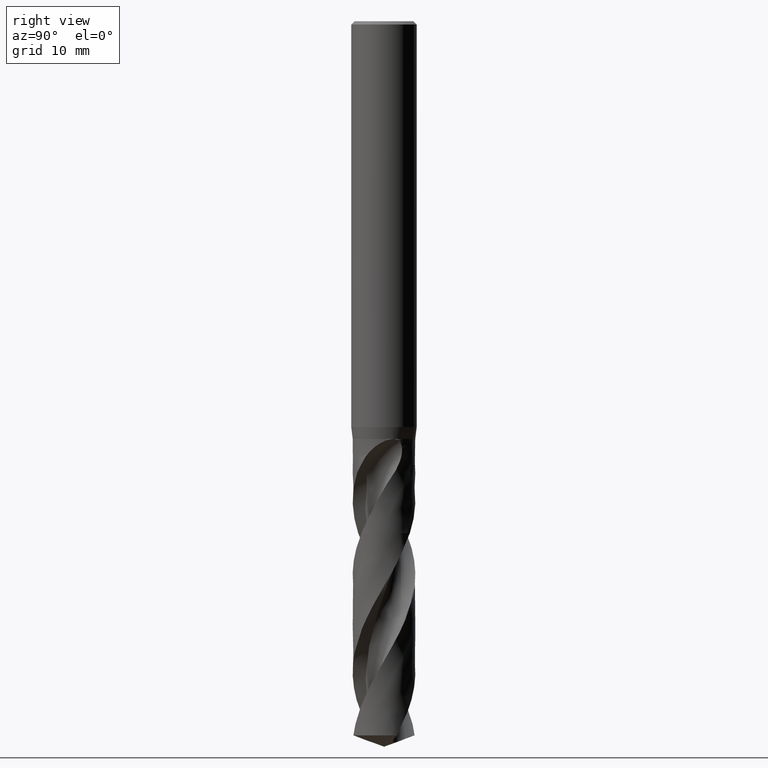
[diagram: clean part render]
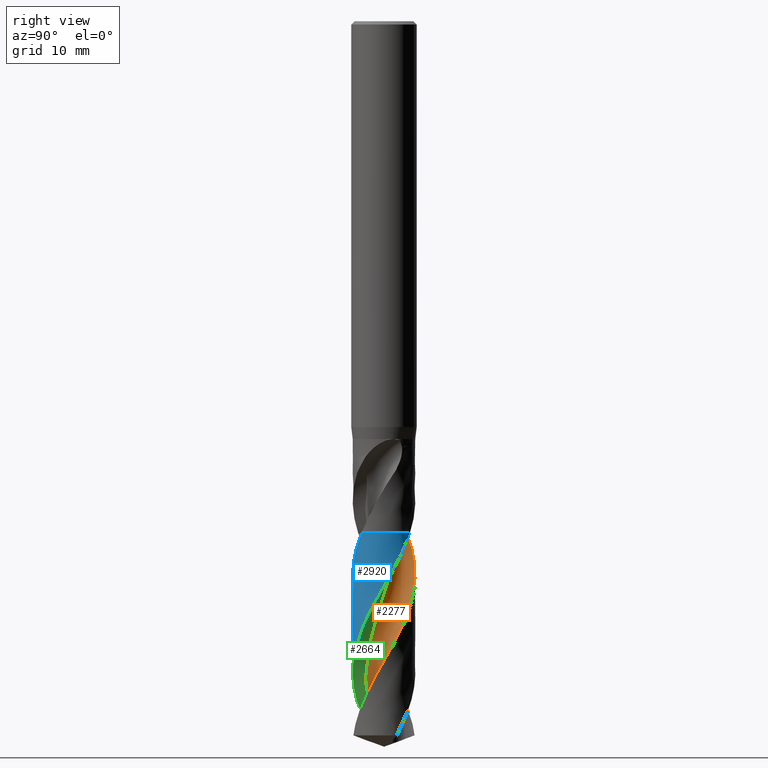
[diagram: same view with three faces highlighted in distinct colors, each labeled with its STEP entity id]
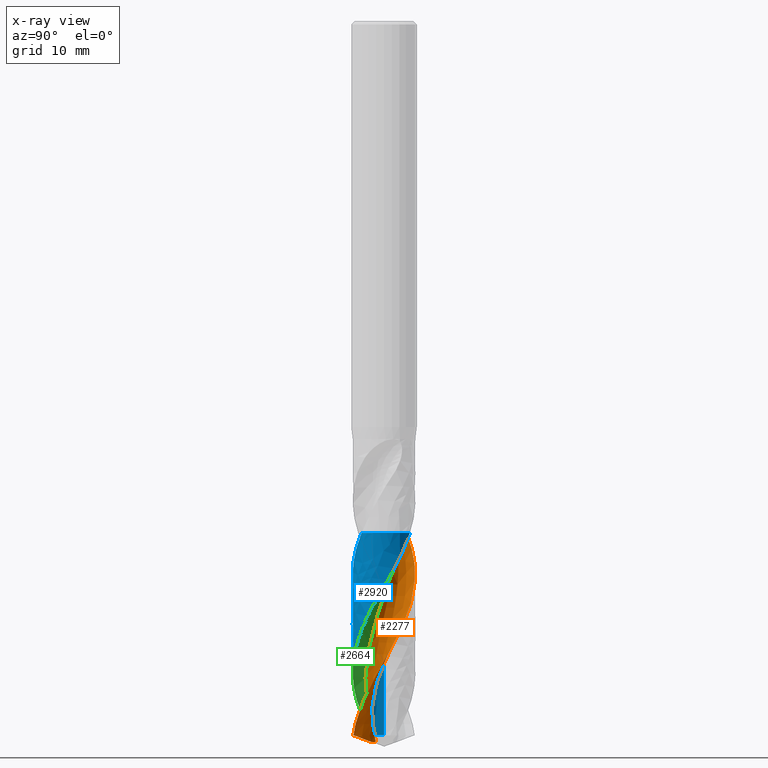
[diagram: x-ray of the same camera — body ghosted, the three highlighted faces saturated]
A machine part, right view with three faces highlighted in distinct colors.
The next image is the same camera in x-ray (body ghosted, the three faces saturated) — at least one of them is partly hidden behind the body in this view.
Their STEP definitions:

[orange] entity #2277 — the highlighted face is a freeform B-spline surface patch.
#1698 = VERTEX_POINT('', #1699);
#1699 = CARTESIAN_POINT('', (0.754867417391101, 1.53021260056611, -46.55));
#1705 = EDGE_CURVE('', #1698, #1706, #1708, .T.);
#1706 = VERTEX_POINT('', #1707);
#1707 = CARTESIAN_POINT('', (-1.98792407617232, 2.04221885883332, -46.55));
#1708 = B_SPLINE_CURVE_WITH_KNOTS('', 3, (#1709, #1710, #1711, #1712, #1713, #1714, #1715, #1716, #1717, #1718, #1719, #1720, #1721, #1722, #1723, #1724, #1725, #1726, #1727, #1728, #1729, #1730, #1731, #1732, #1733, #1734, #1735, #1736, #1737, #1738, #1739, #1740, #1741, #1742, #1743, #1744, #1745, #1746, #1747, #1748, #1749, #1750, #1751, #1752, #1753, #1754, #1755, #1756, #1757, #1758, #1759, #1760, #1761, #1762, #1763, #1764, #1765, #1766), .UNSPECIFIED., .F., .U., (4, 3, 3, 3, 3, 3, 3, 3, 3, 3, 3, 3, 3, 3, 3, 3, 3, 3, 3, 4), (0., 0.198455432316953, 0.396559197531657, 0.594321718524475, 0.791750740679741, 0.988851567356047, 1.1856272191016, 1.38207852683083, 1.57820416493407, 1.63647815425258, 1.66243737825319, 1.86085366532195, 2.05891956762278, 2.25664520039505, 2.45403803134038, 2.65110310708276, 2.84784320473098, 3.04425891824851, 3.24034868518488, 3.26148882013835), .UNSPECIFIED.);
#1709 = CARTESIAN_POINT('', (0.754867417391099, 1.53021260056611, -46.55));
#1710 = CARTESIAN_POINT('', (0.707357260937765, 1.48418166420548, -46.55));
#1711 = CARTESIAN_POINT('', (0.657087327051466, 1.44083954856038, -46.55));
#1712 = CARTESIAN_POINT('', (0.604564117591483, 1.40062295327337, -46.55));
#1713 = CARTESIAN_POINT('', (0.552133980337465, 1.36047762261924, -46.55));
#1714 = CARTESIAN_POINT('', (0.497282953786411, 1.32331223799648, -46.55));
#1715 = CARTESIAN_POINT('', (0.440561745244648, 1.28949994189925, -46.55));
#1716 = CARTESIAN_POINT('', (0.383938241987042, 1.25574588927185, -46.55));
#1717 = CARTESIAN_POINT('', (0.32526200638548, 1.22522067381281, -46.55));
#1718 = CARTESIAN_POINT('', (0.265120128316553, 1.19822971806316, -46.55));
#1719 = CARTESIAN_POINT('', (0.205079671115055, 1.17128427878611, -46.55));
#1720 = CARTESIAN_POINT('', (0.1433787891019, 1.14777150963772, -46.55));
#1721 = CARTESIAN_POINT('', (0.080632760280237, 1.12792587873544, -46.55));
#1722 = CARTESIAN_POINT('', (0.0179910371110923, 1.10811323815175, -46.55));
#1723 = CARTESIAN_POINT('', (-0.0459000479524091, 1.09188982151476, -46.55));
#1724 = CARTESIAN_POINT('', (-0.110405487523051, 1.07941687181165, -46.55));
#1725 = CARTESIAN_POINT('', (-0.174804506678319, 1.06696449985356, -46.55));
#1726 = CARTESIAN_POINT('', (-0.240028669780459, 1.05820903744416, -46.55));
#1727 = CARTESIAN_POINT('', (-0.305431852027283, 1.05323721810595, -46.55));
#1728 = CARTESIAN_POINT('', (-0.370727230637721, 1.04827359378495, -46.55));
#1729 = CARTESIAN_POINT('', (-0.436416111438954, 1.04706475910934, -46.55));
#1730 = CARTESIAN_POINT('', (-0.50184990416062, 1.04962264971265, -46.55));
#1731 = CARTESIAN_POINT('', (-0.567175223189495, 1.05217629994064, -46.55));
#1732 = CARTESIAN_POINT('', (-0.632460765197282, 1.05849253980213, -46.55));
#1733 = CARTESIAN_POINT('', (-0.697064052538535, 1.06850921092655, -46.55));
#1734 = CARTESIAN_POINT('', (-0.716259356695983, 1.07148542245992, -46.55));
#1735 = CARTESIAN_POINT('', (-0.735406721263155, 1.07478922281434, -46.55));
#1736 = CARTESIAN_POINT('', (-0.754489473548135, 1.07841773518422, -46.55));
#1737 = CARTESIAN_POINT('', (-0.76299023772967, 1.08003412298434, -46.55));
#1738 = CARTESIAN_POINT('', (-0.771478977390559, 1.08171508337392, -46.55));
#1739 = CARTESIAN_POINT('', (-0.779954225464879, 1.08346032584108, -46.55));
#1740 = CARTESIAN_POINT('', (-0.844733791096485, 1.09679988215294, -46.55));
#1741 = CARTESIAN_POINT('', (-0.908845598927269, 1.11393265261506, -46.55));
#1742 = CARTESIAN_POINT('', (-0.971643935498219, 1.1346860814869, -46.55));
#1743 = CARTESIAN_POINT('', (-1.03433137602877, 1.15540286172739, -46.55));
#1744 = CARTESIAN_POINT('', (-1.09591989172783, 1.1797968472971, -46.55));
#1745 = CARTESIAN_POINT('', (-1.15579136628145, 1.20762321462344, -46.55));
#1746 = CARTESIAN_POINT('', (-1.2155599839668, 1.23540177733131, -46.55));
#1747 = CARTESIAN_POINT('', (-1.27381690770129, 1.26669358934867, -46.55));
#1748 = CARTESIAN_POINT('', (-1.32997945995598, 1.30118567438817, -46.55));
#1749 = CARTESIAN_POINT('', (-1.38604748223125, 1.33561970408727, -46.55));
#1750 = CARTESIAN_POINT('', (-1.44021465492826, 1.37335771731861, -46.55));
#1751 = CARTESIAN_POINT('', (-1.49194102332537, 1.41402353017936, -46.55));
#1752 = CARTESIAN_POINT('', (-1.54358150417382, 1.45462182067022, -46.55));
#1753 = CARTESIAN_POINT('', (-1.59296046639658, 1.49827272509795, -46.55));
#1754 = CARTESIAN_POINT('', (-1.63958731478675, 1.54454255827508, -46.55));
#1755 = CARTESIAN_POINT('', (-1.68613727129605, 1.59073608832165, -46.55));
#1756 = CARTESIAN_POINT('', (-1.73009799310246, 1.63969249024281, -46.55));
#1757 = CARTESIAN_POINT('', (-1.77103415266251, 1.69092696603457, -46.55));
#1758 = CARTESIAN_POINT('', (-1.81190281687874, 1.74207696666803, -46.55));
#1759 = CARTESIAN_POINT('', (-1.8498914847567, 1.79566593122454, -46.55));
#1760 = CARTESIAN_POINT('', (-1.88462520433518, 1.85116493125036, -46.55));
#1761 = CARTESIAN_POINT('', (-1.91930128424245, 1.90657183218191, -46.55));
#1762 = CARTESIAN_POINT('', (-1.95084704555227, 1.96406424857302, -46.55));
#1763 = CARTESIAN_POINT('', (-1.97895215842839, 2.02307660167636, -46.55));
#1764 = CARTESIAN_POINT('', (-1.98198212724506, 2.0294386323321, -46.55));
#1765 = CARTESIAN_POINT('', (-1.98497287801302, 2.03581962977859, -46.55));
#1766 = CARTESIAN_POINT('', (-1.9879240721862, 2.04221886067163, -46.55));
#2101 = EDGE_CURVE('', #1706, #2102, #2104, .T.);
#2102 = VERTEX_POINT('', #2103);
#2103 = CARTESIAN_POINT('', (-1.3257214538499, 2.52288775549015, -47.9747426173609));
#2104 = B_SPLINE_CURVE_WITH_KNOTS('', 3, (#2105, #2106, #2107, #2108, #2109, #2110, #2111, #2112, #2113, #2114, #2115, #2116, #2117, #2118, #2119, #2120), .UNSPECIFIED., .F., .U., (4, 3, 3, 3, 3, 4), (3.44372196559337, 3.59760993028609, 4.0408805755316, 4.48407031043517, 4.92717567890113, 5.08804353266622), .UNSPECIFIED.);
#2105 = CARTESIAN_POINT('', (-1.98792407617232, 2.04221885883332, -46.55));
#2106 = CARTESIAN_POINT('', (-1.96956200638207, 2.06009275147049, -46.5944368851698));
#2107 = CARTESIAN_POINT('', (-1.95095737974565, 2.07772032951868, -46.6388815479667));
#2108 = CARTESIAN_POINT('', (-1.93212246154839, 2.09509016359206, -46.6833204175445));
#2109 = CARTESIAN_POINT('', (-1.87786892483344, 2.14512356011456, -46.8113255310766));
#2110 = CARTESIAN_POINT('', (-1.8216701698186, 2.19304860180755, -46.9393623178903));
#2111 = CARTESIAN_POINT('', (-1.76371032108836, 2.23871076811775, -47.0673768428751));
#2112 = CARTESIAN_POINT('', (-1.70576105178907, 2.28436459969718, -47.1953680013249));
#2113 = CARTESIAN_POINT('', (-1.64603081183688, 2.32777211206765, -47.3233860555629));
#2114 = CARTESIAN_POINT('', (-1.58472553369249, 2.36878555020565, -47.4513848350699));
#2115 = CARTESIAN_POINT('', (-1.523431925737, 2.40979118094785, -47.5793592484868));
#2116 = CARTESIAN_POINT('', (-1.46054098789432, 2.44841905293377, -47.7073624470572));
#2117 = CARTESIAN_POINT('', (-1.39626714364824, 2.48453980921385, -47.8353467528518));
#2118 = CARTESIAN_POINT('', (-1.37293274936434, 2.4976533234086, -47.8818110073024));
#2119 = CARTESIAN_POINT('', (-1.34941402656523, 2.51043783500627, -47.9282770749575));
#2120 = CARTESIAN_POINT('', (-1.32572145384989, 2.52288775549016, -47.974742617361));
#2123 = VERTEX_POINT('', #2124);
#2124 = CARTESIAN_POINT('', (1.16251258702734, -2.60212691562172, -63.955245183903));
#2242 = EDGE_CURVE('', #2123, #2243, #2245, .T.);
#2243 = VERTEX_POINT('', #2244);
#2244 = CARTESIAN_POINT('', (0.621152130627905, -2.78148701787666, -64.9626848323413));
#2245 = B_SPLINE_CURVE_WITH_KNOTS('', 3, (#2246, #2247, #2248, #2249, #2250, #2251, #2252), .UNSPECIFIED., .F., .U., (4, 3, 4), (0., 0.664037174440542, 1.15800526461268), .UNSPECIFIED.);
#2246 = CARTESIAN_POINT('', (1.16251258702727, -2.60212691562175, -63.9552451839032));
#2247 = CARTESIAN_POINT('', (1.06279892360641, -2.64667446944376, -64.1477721447915));
#2248 = CARTESIAN_POINT('', (0.960498431093776, -2.68549102381541, -64.3403873660212));
#2249 = CARTESIAN_POINT('', (0.856368203219401, -2.71829606564751, -64.532935164675));
#2250 = CARTESIAN_POINT('', (0.778907163729209, -2.74269928354789, -64.6761688148815));
#2251 = CARTESIAN_POINT('', (0.700394839451789, -2.76379080822106, -64.8194401273909));
#2252 = CARTESIAN_POINT('', (0.621152130627904, -2.78148701787666, -64.9626848323413));
#2277 = ADVANCED_FACE('', (#2278), #2468, .T.);
#2278 = FACE_OUTER_BOUND('', #2279, .T.);
#2279 = EDGE_LOOP('', (#2280, #2281, #2325, #2428, #2429, #2467));
#2280 = ORIENTED_EDGE('', *, *, #1705, .F.);
#2281 = ORIENTED_EDGE('', *, *, #2282, .F.);
#2282 = EDGE_CURVE('', #2283, #1698, #2285, .T.);
#2283 = VERTEX_POINT('', #2284);
#2284 = CARTESIAN_POINT('', (-1.515400934221, -0.784165270921295, -65.3789687376205));
#2285 = B_SPLINE_CURVE_WITH_KNOTS('', 3, (#2286, #2287, #2288, #2289, #2290, #2291, #2292, #2293, #2294, #2295, #2296, #2297, #2298, #2299, #2300, #2301, #2302, #2303, #2304, #2305, #2306, #2307, #2308, #2309, #2310, #2311, #2312, #2313, #2314, #2315, #2316, #2317, #2318, #2319, #2320, #2321, #2322, #2323, #2324), .UNSPECIFIED., .F., .U., (4, 1, 1, 1, 1, 1, 1, 1, 1, 1, 1, 1, 1, 1, 1, 1, 1, 1, 1, 1, 1, 1, 1, 1, 1, 1, 1, 1, 1, 1, 1, 1, 1, 1, 1, 1, 4), (0.671031262379517, 1.05849056603774, 1.5877358490566, 2.11698113207547, 2.64622641509434, 3.17547169811321, 3.70471698113208, 4.23396226415094, 4.76320754716981, 5.29245283018868, 5.82169811320755, 6.35094339622642, 6.88018867924528, 7.40943396226415, 7.93867924528302, 8.46792452830189, 8.99716981132076, 9.52641509433962, 10.0556603773585, 10.5849056603774, 11.1141509433962, 11.6433962264151, 12.172641509434, 12.7018867924528, 13.2311320754717, 13.7603773584906, 14.2896226415094, 14.8188679245283, 15.3481132075472, 15.877358490566, 16.4066037735849, 16.9358490566038, 17.4650943396226, 17.9943396226415, 18.5235849056604, 19.0528301886792, 19.5), .UNSPECIFIED.);
#2286 = CARTESIAN_POINT('', (-1.515400934221, -0.784165270921293, -65.3789687376205));
#2287 = CARTESIAN_POINT('', (-1.49411969429692, -0.822920429971845, -65.2498156364011));
#2288 = CARTESIAN_POINT('', (-1.44030420165213, -0.912594680561136, -64.944247440842));
#2289 = CARTESIAN_POINT('', (-1.34308619932004, -1.0455459553565, -64.4622641509434));
#2290 = CARTESIAN_POINT('', (-1.22194090564812, -1.17924480810228, -63.9330188679245));
#2291 = CARTESIAN_POINT('', (-1.08777655050227, -1.2992655621701, -63.4037735849057));
#2292 = CARTESIAN_POINT('', (-0.942101842233564, -1.40437210499371, -62.8745283018868));
#2293 = CARTESIAN_POINT('', (-0.786538668761806, -1.49349026305266, -62.3452830188679));
#2294 = CARTESIAN_POINT('', (-0.622806110761374, -1.56571863975966, -61.8160377358491));
#2295 = CARTESIAN_POINT('', (-0.452702181765073, -1.62033681750643, -61.2867924528302));
#2296 = CARTESIAN_POINT('', (-0.278085263089751, -1.65681197294879, -60.7575471698113));
#2297 = CARTESIAN_POINT('', (-0.100854932853569, -1.67480355540516, -60.2283018867925));
#2298 = CARTESIAN_POINT('', (0.0770674993216501, -1.67416607475318, -59.6990566037736));
#2299 = CARTESIAN_POINT('', (0.253758601916757, -1.65494996074315, -59.1698113207547));
#2300 = CARTESIAN_POINT('', (0.427312381595231, -1.61740050007821, -58.6405660377358));
#2301 = CARTESIAN_POINT('', (0.595859613066476, -1.56195486736112, -58.111320754717));
#2302 = CARTESIAN_POINT('', (0.757586757821583, -1.48923728474964, -57.5820754716981));
#2303 = CARTESIAN_POINT('', (0.910754296049128, -1.40005236104046, -57.0528301886793));
#2304 = CARTESIAN_POINT('', (1.05371430160363, -1.29537667694449, -56.5235849056604));
#2305 = CARTESIAN_POINT('', (1.18492709711204, -1.17634869856841, -55.9943396226415));
#2306 = CARTESIAN_POINT('', (1.3029768347418, -1.04425711569935, -55.4650943396226));
#2307 = CARTESIAN_POINT('', (1.40658585784897, -0.900527715237323, -54.9358490566038));
#2308 = CARTESIAN_POINT('', (1.49462770957636, -0.746708912954288, -54.4066037735849));
#2309 = CARTESIAN_POINT('', (1.56613866640783, -0.584456078585444, -53.877358490566));
#2310 = CARTESIAN_POINT('', (1.62032768761824, -0.415514799985514, -53.3481132075472));
#2311 = CARTESIAN_POINT('', (1.65658468539421, -0.241703241666237, -52.8188679245283));
#2312 = CARTESIAN_POINT('', (1.67448703505644, -0.0648937612658524, -52.2896226415094));
#2313 = CARTESIAN_POINT('', (1.67380426013206, 0.113006045179426, -51.7603773584906));
#2314 = CARTESIAN_POINT('', (1.65450084310264, 0.290072693809022, -51.2311320754717));
#2315 = CARTESIAN_POINT('', (1.61673712861459, 0.46438637545495, -50.7018867924528));
#2316 = CARTESIAN_POINT('', (1.56086830451475, 0.634050559577516, -50.172641509434));
#2317 = CARTESIAN_POINT('', (1.48744145651919, 0.797211407587735, -49.6433962264151));
#2318 = CARTESIAN_POINT('', (1.39719073416345, 0.952076988589874, -49.1141509433962));
#2319 = CARTESIAN_POINT('', (1.29103059081909, 1.09693545334954, -48.5849056603774));
#2320 = CARTESIAN_POINT('', (1.17004742109801, 1.23017445687749, -48.0556603773585));
#2321 = CARTESIAN_POINT('', (1.03548865380692, 1.35029243890104, -47.5264150943396));
#2322 = CARTESIAN_POINT('', (0.896338416544989, 1.450474915744, -47.0245283018868));
#2323 = CARTESIAN_POINT('', (0.800059143877264, 1.50651105744554, -46.6990566037736));
#2324 = CARTESIAN_POINT('', (0.754867417391102, 1.53021260056611, -46.55));
#2325 = ORIENTED_EDGE('', *, *, #2326, .T.);
#2326 = EDGE_CURVE('', #2283, #2243, #2327, .T.);
#2327 = B_SPLINE_CURVE_WITH_KNOTS('', 3, (#2328, #2329, #2330, #2331, #2332, #2333, #2334, #2335, #2336, #2337, #2338, #2339, #2340, #2341, #2342, #2343, #2344, #2345, #2346, #2347, #2348, #2349, #2350, #2351, #2352, #2353, #2354, #2355, #2356, #2357, #2358, #2359, #2360, #2361, #2362, #2363, #2364, #2365, #2366, #2367, #2368, #2369, #2370, #2371, #2372, #2373, #2374, #2375, #2376, #2377, #2378, #2379, #2380, #2381, #2382, #2383, #2384, #2385, #2386, #2387, #2388, #2389, #2390, #2391, #2392, #2393, #2394, #2395, #2396, #2397, #2398, #2399, #2400, #2401, #2402, #2403, #2404, #2405, #2406, #2407, #2408, #2409, #2410, #2411, #2412, #2413, #2414, #2415, #2416, #2417, #2418, #2419, #2420, #2421, #2422, #2423, #2424, #2425, #2426, #2427), .UNSPECIFIED., .F., .U., (4, 3, 3, 3, 3, 3, 3, 3, 3, 3, 3, 3, 3, 3, 3, 3, 3, 3, 3, 3, 3, 3, 3, 3, 3, 3, 3, 3, 3, 3, 3, 3, 3, 4), (0., 0.131575429082984, 0.262964585614557, 0.394087751512836, 0.481407791041147, 0.568620479621988, 0.655731288625758, 0.74276153955755, 0.829749966700318, 0.916748597513014, 1.00381196088327, 1.0909827589963, 1.17828063490645, 1.26569959913055, 1.3532142412314, 1.44079001457498, 1.5283923835536, 1.61599228557684, 1.65491946591313, 1.68089550343535, 1.73947346175416, 1.77848987035298, 1.91127626778355, 2.04362958448496, 2.17563636037737, 2.30736500359007, 2.43886755315163, 2.57018280073542, 2.70133929379396, 2.83235779149923, 2.96325313927078, 3.09403564957057, 3.22471209595997, 3.4005396806926), .UNSPECIFIED.);
#2328 = CARTESIAN_POINT('', (-1.515400934221, -0.784165270921295, -65.3789687376205));
#2329 = CARTESIAN_POINT('', (-1.47532756566849, -0.774015482839361, -65.3936204570914));
#2330 = CARTESIAN_POINT('', (-1.43463997028066, -0.765838968478562, -65.4081149560381));
#2331 = CARTESIAN_POINT('', (-1.39358588799741, -0.759751594255181, -65.4222949472811));
#2332 = CARTESIAN_POINT('', (-1.35258992635801, -0.753672837983768, -65.4364548637795));
#2333 = CARTESIAN_POINT('', (-1.31113115093218, -0.749663685510263, -65.450335220171));
#2334 = CARTESIAN_POINT('', (-1.26947796146159, -0.74780958137785, -65.4637403493602));
#2335 = CARTESIAN_POINT('', (-1.22790909674457, -0.745959230784506, -65.4771183405504));
#2336 = CARTESIAN_POINT('', (-1.18604105484805, -0.74625162835158, -65.4900571021992));
#2337 = CARTESIAN_POINT('', (-1.1441614991909, -0.748730020366683, -65.5023178260949));
#2338 = CARTESIAN_POINT('', (-1.11627226672494, -0.750380478447396, -65.5104827211985));
#2339 = CARTESIAN_POINT('', (-1.0883365289342, -0.753001333695995, -65.51835834588));
#2340 = CARTESIAN_POINT('', (-1.06044421794915, -0.756591376220405, -65.5258636369506));
#2341 = CARTESIAN_POINT('', (-1.03258619767247, -0.760177005159244, -65.533359701043));
#2342 = CARTESIAN_POINT('', (-1.00473623752069, -0.764734206635517, -65.5404955909916));
#2343 = CARTESIAN_POINT('', (-0.976987708733203, -0.770247399799451, -65.5471844516395));
#2344 = CARTESIAN_POINT('', (-0.94927159504979, -0.775754152595624, -65.5538654985357));
#2345 = CARTESIAN_POINT('', (-0.92162009913597, -0.78222216027102, -65.5601089618847));
#2346 = CARTESIAN_POINT('', (-0.894129322314652, -0.789618523489926, -65.5658268874346));
#2347 = CARTESIAN_POINT('', (-0.866663968331248, -0.797008046722299, -65.5715395251784));
#2348 = CARTESIAN_POINT('', (-0.839321543732143, -0.805334465921816, -65.5767348109067));
#2349 = CARTESIAN_POINT('', (-0.812199215961776, -0.81454521920992, -65.5813311478407));
#2350 = CARTESIAN_POINT('', (-0.785089922262922, -0.823751546122158, -65.5859252759309));
#2351 = CARTESIAN_POINT('', (-0.75816278178012, -0.833854198981688, -65.5899267689389));
#2352 = CARTESIAN_POINT('', (-0.731512902169318, -0.844780465456747, -65.5932699546383));
#2353 = CARTESIAN_POINT('', (-0.704859896549872, -0.855708013573746, -65.5966135324906));
#2354 = CARTESIAN_POINT('', (-0.678447218982848, -0.867474349506173, -65.599302754999));
#2355 = CARTESIAN_POINT('', (-0.652363293847786, -0.879989292572945, -65.6012973925193));
#2356 = CARTESIAN_POINT('', (-0.626259960600558, -0.892513547559513, -65.6032935141779));
#2357 = CARTESIAN_POINT('', (-0.600450787287105, -0.905803938654314, -65.6045965024101));
#2358 = CARTESIAN_POINT('', (-0.575012296509723, -0.919759119848011, -65.6051978143759));
#2359 = CARTESIAN_POINT('', (-0.549542415057692, -0.933731521503265, -65.6057998683506));
#2360 = CARTESIAN_POINT('', (-0.524412148107194, -0.94838732917366, -65.6056995173056));
#2361 = CARTESIAN_POINT('', (-0.499682010331793, -0.963622760698986, -65.6049202548136));
#2362 = CARTESIAN_POINT('', (-0.474915820902637, -0.97888040247268, -65.6041398563108));
#2363 = CARTESIAN_POINT('', (-0.450522964632633, -0.994735997127882, -65.6026782951787));
#2364 = CARTESIAN_POINT('', (-0.426546499874404, -1.01109195954172, -65.600585348841));
#2365 = CARTESIAN_POINT('', (-0.40253677806769, -1.02747060882957, -65.598489499439));
#2366 = CARTESIAN_POINT('', (-0.37892111112308, -1.04436655654448, -65.5957592189108));
#2367 = CARTESIAN_POINT('', (-0.355726654388146, -1.06169454533756, -65.592461119518));
#2368 = CARTESIAN_POINT('', (-0.332506811898614, -1.07904149918233, -65.5891594104378));
#2369 = CARTESIAN_POINT('', (-0.30969000178825, -1.09683538905391, -65.5852866134424));
#2370 = CARTESIAN_POINT('', (-0.287291073990799, -1.11500592405071, -65.5809163883639));
#2371 = CARTESIAN_POINT('', (-0.264876499962511, -1.13318915163652, -65.57654311057));
#2372 = CARTESIAN_POINT('', (-0.242865187888615, -1.15176172025167, -65.5716692488102));
#2373 = CARTESIAN_POINT('', (-0.221263877636437, -1.17066797810176, -65.5663678091506));
#2374 = CARTESIAN_POINT('', (-0.199656007344397, -1.189579977539, -65.5610647595121));
#2375 = CARTESIAN_POINT('', (-0.178446371108292, -1.2088363360541, -65.5553312273611));
#2376 = CARTESIAN_POINT('', (-0.157637291612822, -1.22839397998533, -65.5492347618973));
#2377 = CARTESIAN_POINT('', (-0.136828798118295, -1.24795107315709, -65.543138468115));
#2378 = CARTESIAN_POINT('', (-0.116411279200099, -1.26781843729407, -65.5366766038467));
#2379 = CARTESIAN_POINT('', (-0.0963853602730846, -1.28796292032479, -65.5299089995976));
#2380 = CARTESIAN_POINT('', (-0.0874863485223062, -1.2969146189638, -65.5269016474777));
#2381 = CARTESIAN_POINT('', (-0.0786635227507917, -1.30592227227248, -65.523833444672));
#2382 = CARTESIAN_POINT('', (-0.0699169282581257, -1.314983462101, -65.5207091192873));
#2383 = CARTESIAN_POINT('', (-0.0640803414627202, -1.32102997779898, -65.5186242625696));
#2384 = CARTESIAN_POINT('', (-0.0582774689890545, -1.32710057608489, -65.5165143269583));
#2385 = CARTESIAN_POINT('', (-0.0525083297595933, -1.33319460043793, -65.5143806388894));
#2386 = CARTESIAN_POINT('', (-0.039498478005656, -1.34693709308103, -65.5095690085298));
#2387 = CARTESIAN_POINT('', (-0.0266587551793972, -1.3608001470309, -65.5046361617993));
#2388 = CARTESIAN_POINT('', (-0.0139895176896999, -1.37477702510706, -65.499596178258));
#2389 = CARTESIAN_POINT('', (-0.00555105105958747, -1.38408645823867, -65.496239249085));
#2390 = CARTESIAN_POINT('', (0.00281244535999721, -1.39344714092356, -65.4928344955315));
#2391 = CARTESIAN_POINT('', (0.0111008029302939, -1.4028573085199, -65.4893857113446));
#2392 = CARTESIAN_POINT('', (0.0393089641091662, -1.4348833790684, -65.4776483002362));
#2393 = CARTESIAN_POINT('', (0.0666593799070872, -1.46749542938376, -65.46539821028));
#2394 = CARTESIAN_POINT('', (0.0931399563930165, -1.50063530554913, -65.4527623862817));
#2395 = CARTESIAN_POINT('', (0.119534166898733, -1.533667096534, -65.440167773823));
#2396 = CARTESIAN_POINT('', (0.145080248042566, -1.56724379367013, -65.4271817764674));
#2397 = CARTESIAN_POINT('', (0.169757103928069, -1.60131835608224, -65.4139019117503));
#2398 = CARTESIAN_POINT('', (0.194369348379454, -1.63530370103672, -65.4006568177151));
#2399 = CARTESIAN_POINT('', (0.218130684083493, -1.66980367259699, -65.3871115302071));
#2400 = CARTESIAN_POINT('', (0.241011407364031, -1.70477616917863, -65.3733421529656));
#2401 = CARTESIAN_POINT('', (0.263843921930761, -1.73967498019281, -65.3596017872181));
#2402 = CARTESIAN_POINT('', (0.285811854759172, -1.77506344576281, -65.34563049454));
#2403 = CARTESIAN_POINT('', (0.306877749227139, -1.81090055866194, -65.331489143408));
#2404 = CARTESIAN_POINT('', (0.327907487056135, -1.84667616220741, -65.3173720639123));
#2405 = CARTESIAN_POINT('', (0.348049610382226, -1.88291838785991, -65.3030776193932));
#2406 = CARTESIAN_POINT('', (0.367259770272384, -1.9195847574528, -65.2886560136033));
#2407 = CARTESIAN_POINT('', (0.386442568708694, -1.95619890232787, -65.2742549488241));
#2408 = CARTESIAN_POINT('', (0.404706628220894, -1.99325638110462, -65.2597189250361));
#2409 = CARTESIAN_POINT('', (0.422001451345919, -2.03071134084554, -65.2450908318099));
#2410 = CARTESIAN_POINT('', (0.439275365768528, -2.06812101914, -65.2304804233235));
#2411 = CARTESIAN_POINT('', (0.455592297620586, -2.10594890637187, -65.2157696012716));
#2412 = CARTESIAN_POINT('', (0.470896238673113, -2.14414417665315, -65.2009964194168));
#2413 = CARTESIAN_POINT('', (0.486184077795017, -2.18229926005772, -65.1862387810583));
#2414 = CARTESIAN_POINT('', (0.500470310800789, -2.22084430235588, -65.1714098180394));
#2415 = CARTESIAN_POINT('', (0.513694012021039, -2.25972200699859, -65.1565446200152));
#2416 = CARTESIAN_POINT('', (0.526905283714487, -2.29856316881084, -65.1416933944313));
#2417 = CARTESIAN_POINT('', (0.53906454033131, -2.3377617326447, -65.1267962614135));
#2418 = CARTESIAN_POINT('', (0.550106569448904, -2.3772524156783, -65.1118868013786));
#2419 = CARTESIAN_POINT('', (0.561139079858081, -2.41670905602889, -65.0969901939454));
#2420 = CARTESIAN_POINT('', (0.571063923382067, -2.45648505093568, -65.0820707834389));
#2421 = CARTESIAN_POINT('', (0.579812362055107, -2.49650553316931, -65.0671618099909));
#2422 = CARTESIAN_POINT('', (0.588553705791575, -2.53649355900773, -65.05226492764));
#2423 = CARTESIAN_POINT('', (0.596127072894482, -2.57675615400376, -65.0373670996504));
#2424 = CARTESIAN_POINT('', (0.602461195185319, -2.6172071605791, -65.0225021958028));
#2425 = CARTESIAN_POINT('', (0.610983874325829, -2.67163474093241, -65.0025011916967));
#2426 = CARTESIAN_POINT('', (0.617273190200927, -2.72647755687181, -64.9825330249346));
#2427 = CARTESIAN_POINT('', (0.621152130627908, -2.78148701787666, -64.9626848323413));
#2428 = ORIENTED_EDGE('', *, *, #2242, .F.);
#2429 = ORIENTED_EDGE('', *, *, #2430, .T.);
#2430 = EDGE_CURVE('', #2123, #2102, #2431, .T.);
#2431 = B_SPLINE_CURVE_WITH_KNOTS('', 3, (#2432, #2433, #2434, #2435, #2436, #2437, #2438, #2439, #2440, #2441, #2442, #2443, #2444, #2445, #2446, #2447, #2448, #2449, #2450, #2451, #2452, #2453, #2454, #2455, #2456, #2457, #2458, #2459, #2460, #2461, #2462, #2463, #2464, #2465, #2466), .UNSPECIFIED., .F., .U., (4, 1, 1, 1, 1, 1, 1, 1, 1, 1, 1, 1, 1, 1, 1, 1, 1, 1, 1, 1, 1, 1, 1, 1, 1, 1, 1, 1, 1, 1, 1, 1, 4), (2.09475481609725, 2.11698113207547, 2.64622641509434, 3.17547169811321, 3.70471698113208, 4.23396226415094, 4.76320754716981, 5.29245283018868, 5.82169811320755, 6.35094339622642, 6.88018867924528, 7.40943396226415, 7.93867924528302, 8.46792452830189, 8.99716981132076, 9.52641509433962, 10.0556603773585, 10.5849056603774, 11.1141509433962, 11.6433962264151, 12.172641509434, 12.7018867924528, 13.2311320754717, 13.7603773584906, 14.2896226415094, 14.8188679245283, 15.3481132075472, 15.877358490566, 16.4066037735849, 16.9358490566038, 17.4650943396226, 17.9943396226415, 18.0752573826391), .UNSPECIFIED.);
#2432 = CARTESIAN_POINT('', (1.16251258702749, -2.60212691562165, -63.9552451839028));
#2433 = CARTESIAN_POINT('', (1.16634300762983, -2.60031807167196, -63.94783641191));
#2434 = CARTESIAN_POINT('', (1.26127870413306, -2.55523050276824, -63.7640125455776));
#2435 = CARTESIAN_POINT('', (1.44225364700647, -2.45682030827299, -63.4037735849057));
#2436 = CARTESIAN_POINT('', (1.69102567603274, -2.28558482231139, -62.8745283018868));
#2437 = CARTESIAN_POINT('', (1.92007262450986, -2.08965401289567, -62.3452830188679));
#2438 = CARTESIAN_POINT('', (2.12699544915519, -1.87124020985346, -61.8160377358491));
#2439 = CARTESIAN_POINT('', (2.30963703742668, -1.63278303099416, -61.2867924528302));
#2440 = CARTESIAN_POINT('', (2.46610317690341, -1.37692372686123, -60.7575471698113));
#2441 = CARTESIAN_POINT('', (2.59478080043042, -1.10647747117302, -60.2283018867925));
#2442 = CARTESIAN_POINT('', (2.69435340432282, -0.824404116534595, -59.6990566037736));
#2443 = CARTESIAN_POINT('', (2.76381349453304, -0.533777631404724, -59.1698113207547));
#2444 = CARTESIAN_POINT('', (2.80247196125744, -0.237754528815798, -58.6405660377358));
#2445 = CARTESIAN_POINT('', (2.80996430532744, 0.0604584179563039, -58.111320754717));
#2446 = CARTESIAN_POINT('', (2.78625366928073, 0.357636866631105, -57.5820754716981));
#2447 = CARTESIAN_POINT('', (2.73163065409873, 0.650571697216286, -57.0528301886793));
#2448 = CARTESIAN_POINT('', (2.64670993114337, 0.936101596241875, -56.5235849056604));
#2449 = CARTESIAN_POINT('', (2.53242368705364, 1.21114512962106, -55.9943396226415));
#2450 = CARTESIAN_POINT('', (2.39001196722067, 1.47273200494057, -55.4650943396226));
#2451 = CARTESIAN_POINT('', (2.22101001070811, 1.71803323156156, -54.9358490566038));
#2452 = CARTESIAN_POINT('', (2.02723269594029, 1.94438989683888, -54.4066037735849));
#2453 = CARTESIAN_POINT('', (1.81075624195427, 2.14934028897942, -53.877358490566));
#2454 = CARTESIAN_POINT('', (1.57389733430775, 2.33064511147423, -53.3481132075472));
#2455 = CARTESIAN_POINT('', (1.31918986773059, 2.48631055052811, -52.8188679245283));
#2456 = CARTESIAN_POINT('', (1.04935951893062, 2.61460897546005, -52.2896226415094));
#2457 = CARTESIAN_POINT('', (0.767296383212778, 2.71409707216365, -51.7603773584906));
#2458 = CARTESIAN_POINT('', (0.476025924757133, 2.78363123263787, -51.2311320754717));
#2459 = CARTESIAN_POINT('', (0.178678512960235, 2.82238004403817, -50.7018867924528));
#2460 = CARTESIAN_POINT('', (-0.121542193435229, 2.82983375767201, -50.172641509434));
#2461 = CARTESIAN_POINT('', (-0.421391649404978, 2.80581060013071, -49.6433962264151));
#2462 = CARTESIAN_POINT('', (-0.717617581588252, 2.7504599822297, -49.1141509433962));
#2463 = CARTESIAN_POINT('', (-1.00699258549872, 2.66426206959774, -48.5849056603774));
#2464 = CARTESIAN_POINT('', (-1.20746781879998, 2.58084712962647, -48.2051028850323));
#2465 = CARTESIAN_POINT('', (-1.31192189546665, 2.5297728356121, -48.0017152040268));
#2466 = CARTESIAN_POINT('', (-1.3257214538499, 2.52288775549015, -47.9747426173609));
#2467 = ORIENTED_EDGE('', *, *, #2101, .F.);
#2468 = (
   BOUNDED_SURFACE ()
   B_SPLINE_SURFACE (3, 2, ((#2469, #2470, #2471, #2472, #2473), (#2474, #2475, #2476, #2477, #2478), (#2479, #2480, #2481, #2482, #2483), (#2484, #2485, #2486, #2487, #2488), (#2489, #2490, #2491, #2492, #2493), (#2494, #2495, #2496, #2497, #2498), (#2499, #2500, #2501, #2502, #2503), (#2504, #2505, #2506, #2507, #2508), (#2509, #2510, #2511, #2512, #2513), (#2514, #2515, #2516, #2517, #2518), (#2519, #2520, #2521, #2522, #2523), (#2524, #2525, #2526, #2527, #2528), (#2529, #2530, #2531, #2532, #2533), (#2534, #2535, #2536, #2537, #2538), (#2539, #2540, #2541, #2542, #2543), (#2544, #2545, #2546, #2547, #2548), (#2549, #2550, #2551, #2552, #2553), (#2554, #2555, #2556, #2557, #2558), (#2559, #2560, #2561, #2562, #2563), (#2564, #2565, #2566, #2567, #2568), (#2569, #2570, #2571, #2572, #2573), (#2574, #2575, #2576, #2577, #2578), (#2579, #2580, #2581, #2582, #2583), (#2584, #2585, #2586, #2587, #2588), (#2589, #2590, #2591, #2592, #2593), (#2594, #2595, #2596, #2597, #2598), (#2599, #2600, #2601, #2602, #2603), (#2604, #2605, #2606, #2607, #2608), (#2609, #2610, #2611, #2612, #2613), (#2614, #2615, #2616, #2617, #2618), (#2619, #2620, #2621, #2622, #2623), (#2624, #2625, #2626, #2627, #2628), (#2629, #2630, #2631, #2632, #2633), (#2634, #2635, #2636, #2637, #2638), (#2639, #2640, #2641, #2642, #2643), (#2644, #2645, #2646, #2647, #2648), (#2649, #2650, #2651, #2652, #2653), (#2654, #2655, #2656, #2657, #2658), (#2659, #2660, #2661, #2662, #2663)), .UNSPECIFIED., .F., .F., .U.)
   B_SPLINE_SURFACE_WITH_KNOTS ((4, 1, 1, 1, 1, 1, 1, 1, 1, 1, 1, 1, 1, 1, 1, 1, 1, 1, 1, 1, 1, 1, 1, 1, 1, 1, 1, 1, 1, 1, 1, 1, 1, 1, 1, 1, 4), (3, 2, 3), (0.444200131649369, 1.05849056603774, 1.5877358490566, 2.11698113207547, 2.64622641509434, 3.17547169811321, 3.70471698113208, 4.23396226415094, 4.76320754716981, 5.29245283018868, 5.82169811320755, 6.35094339622642, 6.88018867924528, 7.40943396226415, 7.93867924528302, 8.46792452830189, 8.99716981132076, 9.52641509433962, 10.0556603773585, 10.5849056603774, 11.1141509433962, 11.6433962264151, 12.172641509434, 12.7018867924528, 13.2311320754717, 13.7603773584906, 14.2896226415094, 14.8188679245283, 15.3481132075472, 15.877358490566, 16.4066037735849, 16.9358490566038, 17.4650943396226, 17.9943396226415, 18.5235849056604, 19.0528301886792, 19.5), (0., 0.5, 1.), .UNSPECIFIED.)
   GEOMETRIC_REPRESENTATION_ITEM ()
   RATIONAL_B_SPLINE_SURFACE (((1., 0.887010833178222, 1., 0.887010833178222, 1.), (1., 0.887010833178222, 1., 0.887010833178222, 1.), (1., 0.887010833178222, 1., 0.887010833178222, 1.), (1., 0.887010833178222, 1., 0.887010833178222, 1.), (1., 0.887010833178222, 1., 0.887010833178222, 1.), (1., 0.887010833178222, 1., 0.887010833178222, 1.), (1., 0.887010833178222, 1., 0.887010833178222, 1.), (1., 0.887010833178222, 1., 0.887010833178222, 1.), (1., 0.887010833178222, 1., 0.887010833178222, 1.), (1., 0.887010833178222, 1., 0.887010833178222, 1.), (1., 0.887010833178222, 1., 0.887010833178222, 1.), (1., 0.887010833178222, 1., 0.887010833178222, 1.), (1., 0.887010833178222, 1., 0.887010833178222, 1.), (1., 0.887010833178222, 1., 0.887010833178222, 1.), (1., 0.887010833178222, 1., 0.887010833178222, 1.), (1., 0.887010833178222, 1., 0.887010833178222, 1.), (1., 0.887010833178222, 1., 0.887010833178222, 1.), (1., 0.887010833178222, 1., 0.887010833178222, 1.), (1., 0.887010833178222, 1., 0.887010833178222, 1.), (1., 0.887010833178222, 1., 0.887010833178222, 1.), (1., 0.887010833178222, 1., 0.887010833178222, 1.), (1., 0.887010833178222, 1., 0.887010833178222, 1.), (1., 0.887010833178221, 1., 0.887010833178221, 1.), (1., 0.887010833178222, 1., 0.887010833178222, 1.), (1., 0.887010833178222, 1., 0.887010833178222, 1.), (1., 0.887010833178222, 1., 0.887010833178222, 1.), (1., 0.887010833178222, 1., 0.887010833178222, 1.), (1., 0.887010833178222, 1., 0.887010833178222, 1.), (1., 0.887010833178222, 1., 0.887010833178222, 1.), (1., 0.887010833178222, 1., 0.887010833178222, 1.), (1., 0.887010833178222, 1., 0.887010833178222, 1.), (1., 0.887010833178221, 1., 0.887010833178221, 1.), (1., 0.887010833178222, 1., 0.887010833178222, 1.), (1., 0.887010833178222, 1., 0.887010833178222, 1.), (1., 0.887010833178222, 1., 0.887010833178222, 1.), (1., 0.887010833178222, 1., 0.887010833178222, 1.), (1., 0.887010833178222, 1., 0.887010833178222, 1.), (1., 0.887010833178222, 1., 0.887010833178222, 1.), (1., 0.887010833178222, 1., 0.887010833178222, 1.)))
   REPRESENTATION_ITEM ('')
   SURFACE ()
);
#2469 = CARTESIAN_POINT('', (0.255533717636006, -2.86051658392765, -65.6057998683506));
#2470 = CARTESIAN_POINT('', (0.484620478069614, -1.99925745378151, -65.6057998683506));
#2471 = CARTESIAN_POINT('', (-0.089482931387439, -1.31760262300876, -65.6057998683506));
#2472 = CARTESIAN_POINT('', (-0.663586340844491, -0.635947792236, -65.6057998683506));
#2473 = CARTESIAN_POINT('', (-1.55125747666482, -0.715244625069912, -65.6057998683506));
#2474 = CARTESIAN_POINT('', (0.372749203431119, -2.84705450660754, -65.4010363902212));
#2475 = CARTESIAN_POINT('', (0.566226662040194, -1.97728028645099, -65.4010363902212));
#2476 = CARTESIAN_POINT('', (-0.0352765572476571, -1.31991083308012, -65.4010363902212));
#2477 = CARTESIAN_POINT('', (-0.636779776535508, -0.662541379709256, -65.4010363902212));
#2478 = CARTESIAN_POINT('', (-1.5202733810902, -0.778212343004812, -65.4010363902212));
#2479 = CARTESIAN_POINT('', (0.589086084303936, -2.80876071584441, -65.0198578177521));
#2480 = CARTESIAN_POINT('', (0.715414529858232, -1.92719216615666, -65.0198578177521));
#2481 = CARTESIAN_POINT('', (0.0657348698114358, -1.31806301459995, -65.0198578177521));
#2482 = CARTESIAN_POINT('', (-0.58394479023536, -0.708933863043246, -65.0198578177521));
#2483 = CARTESIAN_POINT('', (-1.45555512414846, -0.891738156676122, -65.0198578177521));
#2484 = CARTESIAN_POINT('', (0.896197430178654, -2.71763299144146, -64.4622641509434));
#2485 = CARTESIAN_POINT('', (0.92329912911131, -1.83004233434231, -64.4622641509434));
#2486 = CARTESIAN_POINT('', (0.211772323749585, -1.29874083622051, -64.4622641509434));
#2487 = CARTESIAN_POINT('', (-0.499754481612139, -0.767439338098702, -64.4622641509434));
#2488 = CARTESIAN_POINT('', (-1.34308619932004, -1.0455459553565, -64.4622641509434));
#2489 = CARTESIAN_POINT('', (1.17637420220213, -2.60139970396197, -63.9330188679245));
#2490 = CARTESIAN_POINT('', (1.10943880024064, -1.71796652705246, -63.9330188679245));
#2491 = CARTESIAN_POINT('', (0.347380138059706, -1.26608034503848, -63.9330188679245));
#2492 = CARTESIAN_POINT('', (-0.414678524121229, -0.814194163024493, -63.9330188679245));
#2493 = CARTESIAN_POINT('', (-1.22194090564812, -1.17924480810228, -63.9330188679245));
#2494 = CARTESIAN_POINT('', (1.44225364700647, -2.45682030827299, -63.4037735849057));
#2495 = CARTESIAN_POINT('', (1.28244178268189, -1.58732789870864, -63.4037735849057));
#2496 = CARTESIAN_POINT('', (0.47853097826758, -1.21951775635956, -63.4037735849057));
#2497 = CARTESIAN_POINT('', (-0.325379826146728, -0.851707614010468, -63.4037735849057));
#2498 = CARTESIAN_POINT('', (-1.08777655050227, -1.2992655621701, -63.4037735849057));
#2499 = CARTESIAN_POINT('', (1.69102567603273, -2.28558482231139, -62.8745283018868));
#2500 = CARTESIAN_POINT('', (1.44049679121759, -1.43962190051603, -62.8745283018868));
#2501 = CARTESIAN_POINT('', (0.603827069480964, -1.15961875069729, -62.8745283018868));
#2502 = CARTESIAN_POINT('', (-0.232842652255667, -0.879615600878546, -62.8745283018868));
#2503 = CARTESIAN_POINT('', (-0.942101842233564, -1.40437210499371, -62.8745283018868));
#2504 = CARTESIAN_POINT('', (1.92007262450986, -2.08965401289567, -62.3452830188679));
#2505 = CARTESIAN_POINT('', (1.58195758885424, -1.27651535817929, -62.3452830188679));
#2506 = CARTESIAN_POINT('', (0.721938580324853, -1.08708580900993, -62.3452830188679));
#2507 = CARTESIAN_POINT('', (-0.138080428204535, -0.897656259840565, -62.3452830188679));
#2508 = CARTESIAN_POINT('', (-0.786538668761806, -1.49349026305266, -62.3452830188679));
#2509 = CARTESIAN_POINT('', (2.12699544915519, -1.87124020985346, -61.8160377358491));
#2510 = CARTESIAN_POINT('', (1.70535950887325, -1.09983010020948, -61.8160377358491));
#2511 = CARTESIAN_POINT('', (0.831616900508744, -1.00275138098238, -61.8160377358491));
#2512 = CARTESIAN_POINT('', (-0.04212570785576, -0.905672661755283, -61.8160377358491));
#2513 = CARTESIAN_POINT('', (-0.622806110761375, -1.56571863975966, -61.8160377358491));
#2514 = CARTESIAN_POINT('', (2.30963703742668, -1.63278303099416, -61.2867924528302));
#2515 = CARTESIAN_POINT('', (1.80943339057841, -0.911523287659853, -61.2867924528302));
#2516 = CARTESIAN_POINT('', (0.931706972153726, -0.907568534271264, -61.2867924528302));
#2517 = CARTESIAN_POINT('', (0.0539805537290448, -0.903613780882674, -61.2867924528302));
#2518 = CARTESIAN_POINT('', (-0.452702181765073, -1.62033681750643, -61.2867924528302));
#2519 = CARTESIAN_POINT('', (2.46610317690341, -1.37692372686123, -60.7575471698113));
#2520 = CARTESIAN_POINT('', (1.89311771099757, -0.713667014461683, -60.7575471698113));
#2521 = CARTESIAN_POINT('', (1.02115865753188, -0.802600808722289, -60.7575471698113));
#2522 = CARTESIAN_POINT('', (0.149199604066183, -0.891534602982893, -60.7575471698113));
#2523 = CARTESIAN_POINT('', (-0.278085263089751, -1.65681197294879, -60.7575471698113));
#2524 = CARTESIAN_POINT('', (2.59478080043042, -1.10647747117302, -60.2283018867925));
#2525 = CARTESIAN_POINT('', (1.95556856871195, -0.508426741631295, -60.2283018867925));
#2526 = CARTESIAN_POINT('', (1.09903701707825, -0.689010941770321, -60.2283018867925));
#2527 = CARTESIAN_POINT('', (0.242505465444547, -0.869595141909347, -60.2283018867925));
#2528 = CARTESIAN_POINT('', (-0.100854932853569, -1.67480355540516, -60.2283018867925));
#2529 = CARTESIAN_POINT('', (2.69435340432282, -0.824404116534594, -59.6990566037736));
#2530 = CARTESIAN_POINT('', (1.9961675022031, -0.29803894431896, -59.6990566037736));
#2531 = CARTESIAN_POINT('', (1.16453141369177, -0.56804869363533, -59.6990566037736));
#2532 = CARTESIAN_POINT('', (0.33289532518044, -0.838058442951699, -59.6990566037736));
#2533 = CARTESIAN_POINT('', (0.0770674993216499, -1.67416607475318, -59.6990566037736));
#2534 = CARTESIAN_POINT('', (2.76381349453304, -0.533777631404724, -59.1698113207547));
#2535 = CARTESIAN_POINT('', (2.01452706285566, -0.0847881401018534, -59.1698113207547));
#2536 = CARTESIAN_POINT('', (1.21696336190293, -0.441037859987816, -59.1698113207547));
#2537 = CARTESIAN_POINT('', (0.419399660950206, -0.797287579873777, -59.1698113207547));
#2538 = CARTESIAN_POINT('', (0.253758601916756, -1.65494996074315, -59.1698113207547));
#2539 = CARTESIAN_POINT('', (2.80247196125744, -0.237754528815798, -58.6405660377358));
#2540 = CARTESIAN_POINT('', (2.01049410506822, 0.129016470960601, -58.6405660377359));
#2541 = CARTESIAN_POINT('', (1.2557930543935, -0.30936260595976, -58.6405660377358));
#2542 = CARTESIAN_POINT('', (0.501092003718788, -0.747741682880122, -58.6405660377359));
#2543 = CARTESIAN_POINT('', (0.427312381595231, -1.61740050007821, -58.6405660377358));
#2544 = CARTESIAN_POINT('', (2.80996430532744, 0.0604584179563039, -58.111320754717));
#2545 = CARTESIAN_POINT('', (1.98415077050124, 0.341064537256836, -58.111320754717));
#2546 = CARTESIAN_POINT('', (1.28062450984013, -0.174453250070874, -58.111320754717));
#2547 = CARTESIAN_POINT('', (0.577098249179021, -0.689971037398584, -58.111320754717));
#2548 = CARTESIAN_POINT('', (0.595859613066476, -1.56195486736112, -58.111320754717));
#2549 = CARTESIAN_POINT('', (2.78625366928073, 0.357636866631105, -57.5820754716981));
#2550 = CARTESIAN_POINT('', (1.93581316558569, 0.549068035669963, -57.5820754716981));
#2551 = CARTESIAN_POINT('', (1.29120929868889, -0.0377716337341636, -57.5820754716981));
#2552 = CARTESIAN_POINT('', (0.646605431792087, -0.62461130313829, -57.5820754716981));
#2553 = CARTESIAN_POINT('', (0.757586757821583, -1.48923728474964, -57.5820754716981));
#2554 = CARTESIAN_POINT('', (2.73163065409873, 0.650571697216286, -57.0528301886792));
#2555 = CARTESIAN_POINT('', (1.86602775139124, 0.75078448134851, -57.0528301886793));
#2556 = CARTESIAN_POINT('', (1.28744881617535, 0.0992037856525565, -57.0528301886792));
#2557 = CARTESIAN_POINT('', (0.708869880959457, -0.552376910043397, -57.0528301886793));
#2558 = CARTESIAN_POINT('', (0.910754296049127, -1.40005236104046, -57.0528301886792));
#2559 = CARTESIAN_POINT('', (2.64670993114337, 0.936101596241875, -56.5235849056604));
#2560 = CARTESIAN_POINT('', (1.7755654852025, 0.944039650655618, -56.5235849056604));
#2561 = CARTESIAN_POINT('', (1.26939508485203, 0.234992977854352, -56.5235849056604));
#2562 = CARTESIAN_POINT('', (0.763224684501569, -0.474053694946914, -56.5235849056604));
#2563 = CARTESIAN_POINT('', (1.05371430160363, -1.29537667694449, -56.5235849056604));
#2564 = CARTESIAN_POINT('', (2.53242368705364, 1.21114512962106, -55.9943396226415));
#2565 = CARTESIAN_POINT('', (1.66541377285144, 1.12674960572905, -55.9943396226415));
#2566 = CARTESIAN_POINT('', (1.23725008190729, 0.36812937825354, -55.9943396226415));
#2567 = CARTESIAN_POINT('', (0.809086390963148, -0.390490849221972, -55.9943396226415));
#2568 = CARTESIAN_POINT('', (1.18492709711204, -1.17634869856841, -55.9943396226415));
#2569 = CARTESIAN_POINT('', (2.39001196722067, 1.47273200494057, -55.4650943396226));
#2570 = CARTESIAN_POINT('', (1.53676631004501, 1.29694181566642, -55.4650943396226));
#2571 = CARTESIAN_POINT('', (1.19136359958006, 0.497174781000938, -55.4650943396226));
#2572 = CARTESIAN_POINT('', (0.845960889115104, -0.302592253664549, -55.4650943396226));
#2573 = CARTESIAN_POINT('', (1.3029768347418, -1.04425711569935, -55.4650943396226));
#2574 = CARTESIAN_POINT('', (2.22101001070811, 1.71803323156156, -54.9358490566038));
#2575 = CARTESIAN_POINT('', (1.3910109094258, 1.45277517761031, -54.9358490566038));
#2576 = CARTESIAN_POINT('', (1.132229659896, 0.620733947738112, -54.9358490566038));
#2577 = CARTESIAN_POINT('', (0.873448410366204, -0.211307282134091, -54.9358490566038));
#2578 = CARTESIAN_POINT('', (1.40658585784897, -0.900527715237323, -54.9358490566038));
#2579 = CARTESIAN_POINT('', (2.02723269594029, 1.94438989683888, -54.4066037735849));
#2580 = CARTESIAN_POINT('', (1.22971542779049, 1.59255875084802, -54.4066037735849));
#2581 = CARTESIAN_POINT('', (1.06048151767965, 0.737468795372606, -54.4066037735849));
#2582 = CARTESIAN_POINT('', (0.891247607568817, -0.117621160102811, -54.4066037735849));
#2583 = CARTESIAN_POINT('', (1.49462770957636, -0.746708912954288, -54.4066037735849));
#2584 = CARTESIAN_POINT('', (1.81075624195427, 2.14934028897942, -53.877358490566));
#2585 = CARTESIAN_POINT('', (1.05461192464052, 1.71476902839583, -53.877358490566));
#2586 = CARTESIAN_POINT('', (0.976885298244891, 0.846112030104652, -53.877358490566));
#2587 = CARTESIAN_POINT('', (0.899158671849265, -0.0225449681865287, -53.877358490566));
#2588 = CARTESIAN_POINT('', (1.56613866640783, -0.584456078585444, -53.877358490566));
#2589 = CARTESIAN_POINT('', (1.57389733430775, 2.33064511147423, -53.3481132075472));
#2590 = CARTESIAN_POINT('', (0.867579198920244, 1.8180655833271, -53.3481132075472));
#2591 = CARTESIAN_POINT('', (0.882332328236974, 0.945480099704901, -53.3481132075472));
#2592 = CARTESIAN_POINT('', (0.897085457553703, 0.0728946160827017, -53.3481132075472));
#2593 = CARTESIAN_POINT('', (1.62032768761824, -0.415514799985515, -53.3481132075472));
#2594 = CARTESIAN_POINT('', (1.31918986773059, 2.48631055052811, -52.8188679245283));
#2595 = CARTESIAN_POINT('', (0.670623865338315, 1.90130494122504, -52.8188679245283));
#2596 = CARTESIAN_POINT('', (0.777830229728851, 1.03448534187964, -52.8188679245283));
#2597 = CARTESIAN_POINT('', (0.885036594119387, 0.16766574253424, -52.8188679245283));
#2598 = CARTESIAN_POINT('', (1.65658468539421, -0.241703241666238, -52.8188679245283));
#2599 = CARTESIAN_POINT('', (1.04935951893062, 2.61460897546006, -52.2896226415094));
#2600 = CARTESIAN_POINT('', (0.465860144803971, 1.9635525455445, -52.2896226415094));
#2601 = CARTESIAN_POINT('', (0.664492858692159, 1.11214721345292, -52.2896226415094));
#2602 = CARTESIAN_POINT('', (0.863125572580346, 0.260741881361338, -52.2896226415094));
#2603 = CARTESIAN_POINT('', (1.67448703505644, -0.0648937612658524, -52.2896226415094));
#2604 = CARTESIAN_POINT('', (0.767296383212779, 2.71409707216365, -51.7603773584906));
#2605 = CARTESIAN_POINT('', (0.255488555719031, 2.00409269906616, -51.7603773584906));
#2606 = CARTESIAN_POINT('', (0.543529179605527, 1.17760249277664, -51.7603773584906));
#2607 = CARTESIAN_POINT('', (0.831569803492022, 0.351112286487113, -51.7603773584906));
#2608 = CARTESIAN_POINT('', (1.67380426013206, 0.113006045179425, -51.7603773584906));
#2609 = CARTESIAN_POINT('', (0.476025924757133, 2.78363123263787, -51.2311320754717));
#2610 = CARTESIAN_POINT('', (0.0417737018999625, 2.02243638258174, -51.2311320754717));
#2611 = CARTESIAN_POINT('', (0.41623117696176, 1.23011435702728, -51.2311320754717));
#2612 = CARTESIAN_POINT('', (0.790688652023558, 0.437792331472824, -51.2311320754717));
#2613 = CARTESIAN_POINT('', (1.65450084310264, 0.290072693809022, -51.2311320754717));
#2614 = CARTESIAN_POINT('', (0.178678512960235, 2.82238004403817, -50.7018867924528));
#2615 = CARTESIAN_POINT('', (-0.172978633284234, 2.01832686882259, -50.7018867924528));
#2616 = CARTESIAN_POINT('', (0.283960916150383, 1.2690802437107, -50.7018867924528));
#2617 = CARTESIAN_POINT('', (0.740900465584999, 0.519833618598818, -50.7018867924528));
#2618 = CARTESIAN_POINT('', (1.61673712861459, 0.46438637545495, -50.7018867924528));
#2619 = CARTESIAN_POINT('', (-0.121542193435228, 2.82983375767201, -50.172641509434));
#2620 = CARTESIAN_POINT('', (-0.38644488846224, 1.99174307470276, -50.172641509434));
#2621 = CARTESIAN_POINT('', (0.148136863998196, 1.2940384232572, -50.172641509434));
#2622 = CARTESIAN_POINT('', (0.682718616458632, 0.596333771811648, -50.172641509434));
#2623 = CARTESIAN_POINT('', (1.56086830451475, 0.634050559577515, -50.172641509434));
#2624 = CARTESIAN_POINT('', (-0.421391649404978, 2.80581060013071, -49.6433962264151));
#2625 = CARTESIAN_POINT('', (-0.596307348295472, 1.94290059299495, -49.6433962264151));
#2626 = CARTESIAN_POINT('', (0.0102196248557473, 1.30467319388599, -49.6433962264151));
#2627 = CARTESIAN_POINT('', (0.616746598006967, 0.666445794777018, -49.6433962264151));
#2628 = CARTESIAN_POINT('', (1.48744145651919, 0.797211407587735, -49.6433962264151));
#2629 = CARTESIAN_POINT('', (-0.717617581588251, 2.7504599822297, -49.1141509433962));
#2630 = CARTESIAN_POINT('', (-0.800277973015899, 1.87225044630696, -49.1141509433962));
#2631 = CARTESIAN_POINT('', (-0.128302889093152, 1.3008187217032, -49.1141509433962));
#2632 = CARTESIAN_POINT('', (0.543672194829595, 0.729386997099444, -49.1141509433962));
#2633 = CARTESIAN_POINT('', (1.39719073416345, 0.952076988589874, -49.1141509433962));
#2634 = CARTESIAN_POINT('', (-1.00699258549872, 2.66426206959774, -48.5849056603774));
#2635 = CARTESIAN_POINT('', (-0.996121444584979, 1.78047532317829, -48.5849056603774));
#2636 = CARTESIAN_POINT('', (-0.265930294275602, 1.28246118797598, -48.5849056603774));
#2637 = CARTESIAN_POINT('', (0.464260856033776, 0.784447052773672, -48.5849056603774));
#2638 = CARTESIAN_POINT('', (1.29103059081909, 1.09693545334954, -48.5849056603774));
#2639 = CARTESIAN_POINT('', (-1.28634960570584, 2.54802552163418, -48.0556603773585));
#2640 = CARTESIAN_POINT('', (-1.18168006073684, 1.6684842106715, -48.0556603773585));
#2641 = CARTESIAN_POINT('', (-0.401166013227346, 1.24974031164215, -48.0556603773585));
#2642 = CARTESIAN_POINT('', (0.379348034282151, 0.830996412612806, -48.0556603773585));
#2643 = CARTESIAN_POINT('', (1.17004742109801, 1.23017445687749, -48.0556603773585));
#2644 = CARTESIAN_POINT('', (-1.55260596263766, 2.40287659887225, -47.5264150943396));
#2645 = CARTESIAN_POINT('', (-1.35488959937796, 1.5374021279829, -47.5264150943396));
#2646 = CARTESIAN_POINT('', (-0.532528970222222, 1.20294612837094, -47.5264150943396));
#2647 = CARTESIAN_POINT('', (0.289831658933513, 0.868490128758987, -47.5264150943396));
#2648 = CARTESIAN_POINT('', (1.03548865380692, 1.35029243890104, -47.5264150943396));
#2649 = CARTESIAN_POINT('', (-1.78989311406845, 2.23918797447846, -47.0245283018868));
#2650 = CARTESIAN_POINT('', (-1.50560975373866, 1.3962612459175, -47.0245283018868));
#2651 = CARTESIAN_POINT('', (-0.652066364120255, 1.14564963261596, -47.0245283018868));
#2652 = CARTESIAN_POINT('', (0.201477025498148, 0.895038019314416, -47.0245283018868));
#2653 = CARTESIAN_POINT('', (0.896338416544987, 1.450474915744, -47.0245283018868));
#2654 = CARTESIAN_POINT('', (-1.93304575494151, 2.1184224499704, -46.6990566037736));
#2655 = CARTESIAN_POINT('', (-1.59420104575139, 1.29551789917014, -46.6990566037736));
#2656 = CARTESIAN_POINT('', (-0.725763759934965, 1.10108457569466, -46.6990566037736));
#2657 = CARTESIAN_POINT('', (0.142673525881461, 0.906651252219188, -46.6990566037736));
#2658 = CARTESIAN_POINT('', (0.80005914387726, 1.50651105744554, -46.6990566037736));
#2659 = CARTESIAN_POINT('', (-1.99612102013927, 2.06026706090906, -46.55));
#2660 = CARTESIAN_POINT('', (-1.6327109806755, 1.24762634903349, -46.55));
#2661 = CARTESIAN_POINT('', (-0.75859124490035, 1.07920286222402, -46.55));
#2662 = CARTESIAN_POINT('', (0.115528490874802, 0.91077937541454, -46.55));
#2663 = CARTESIAN_POINT('', (0.754867417391095, 1.53021260056611, -46.55));

[blue] entity #2920 — the highlighted face is a freeform B-spline surface patch.
#1626 = VERTEX_POINT('', #1627);
#1627 = CARTESIAN_POINT('', (1.98792407617232, -2.04221885883331, -46.55));
#1688 = EDGE_CURVE('', #1689, #1626, #1691, .T.);
#1689 = VERTEX_POINT('', #1690);
#1690 = CARTESIAN_POINT('', (1.60573856955049, 2.35459203393241, -46.55));
#1691 = CIRCLE('', #1692, 2.85);
#1692 = AXIS2_PLACEMENT_3D('', #1693, #1694, #1695);
#1693 = CARTESIAN_POINT('', (1.74534544707274E-31, 2.85036542501546E-15, -46.55));
#1694 = DIRECTION('', (3.74939945665464E-33, 6.12323399573677E-17, -1.));
#1695 = DIRECTION('', (-1., 6.12323399573677E-17, 0.));
#2669 = EDGE_CURVE('', #1689, #2670, #2672, .T.);
#2670 = VERTEX_POINT('', #2671);
#2671 = CARTESIAN_POINT('', (-2.60187672995793, -1.16307243201076, -64.9626848323413));
#2672 = B_SPLINE_CURVE_WITH_KNOTS('', 3, (#2673, #2674, #2675, #2676, #2677, #2678, #2679, #2680, #2681, #2682, #2683, #2684, #2685, #2686, #2687, #2688, #2689, #2690, #2691, #2692, #2693, #2694, #2695, #2696, #2697, #2698, #2699, #2700, #2701, #2702, #2703, #2704, #2705, #2706, #2707, #2708, #2709, #2710, #2711, #2712, #2713, #2714, #2715, #2716, #2717, #2718, #2719, #2720, #2721, #2722, #2723, #2724, #2725, #2726, #2727, #2728, #2729, #2730, #2731, #2732, #2733, #2734, #2735, #2736, #2737, #2738, #2739, #2740, #2741, #2742, #2743, #2744, #2745, #2746, #2747, #2748, #2749, #2750, #2751, #2752, #2753, #2754, #2755, #2756, #2757, #2758, #2759, #2760, #2761, #2762, #2763, #2764, #2765, #2766, #2767, #2768, #2769, #2770, #2771, #2772, #2773, #2774, #2775, #2776, #2777, #2778, #2779, #2780, #2781, #2782, #2783, #2784, #2785, #2786, #2787, #2788, #2789, #2790, #2791, #2792, #2793, #2794, #2795, #2796, #2797, #2798, #2799, #2800, #2801, #2802, #2803, #2804, #2805, #2806, #2807, #2808, #2809, #2810, #2811), .UNSPECIFIED., .F., .U., (4, 3, 3, 3, 3, 3, 3, 3, 3, 3, 3, 3, 3, 3, 3, 3, 3, 3, 3, 3, 3, 3, 3, 3, 3, 3, 3, 3, 3, 3, 3, 3, 3, 3, 3, 3, 3, 3, 3, 3, 3, 3, 3, 3, 3, 3, 4), (8.12718020859697, 8.3560772079672, 8.79954738843778, 9.24293600959186, 9.68624125915523, 10.129464922319, 10.5726068315397, 11.01566675556, 11.458644121711, 11.9015383574116, 12.3443486785575, 12.7870737520083, 13.2297119198635, 13.6722615697521, 13.7306436931016, 14.3975054479948, 14.8415561259902, 15.2855141551041, 15.729381880988, 16.1731615920202, 16.6168552635841, 17.0604643650274, 17.5039900193723, 17.9474333549319, 18.3907951725704, 18.8340758276153, 19.2772755163236, 19.7203943562596, 20.1634321217137, 20.60638818555, 21.0492618325269, 21.4920521541486, 21.9347578528471, 22.3773772507074, 22.6725891607567, 22.7115063998218, 23.0074545710325, 23.6741715359092, 24.3405698434718, 25.0066639766445, 25.6724655540482, 26.3379836888492, 27.0032252513628, 27.6681950653522, 28.3328960200129, 28.9973293538324, 29.3347171342099), .UNSPECIFIED.);
#2673 = CARTESIAN_POINT('', (1.60573856955049, 2.35459203393241, -46.55));
#2674 = CARTESIAN_POINT('', (1.63714246407334, 2.33317582087183, -46.6161564705521));
#2675 = CARTESIAN_POINT('', (1.66812099992551, 2.3111288920264, -46.6823273468124));
#2676 = CARTESIAN_POINT('', (1.69863852714089, 2.28847703814407, -46.7484870884784));
#2677 = CARTESIAN_POINT('', (1.75776386884022, 2.24459082837799, -46.8766664558675));
#2678 = CARTESIAN_POINT('', (1.81519145865899, 2.19840856515726, -47.0048745330272));
#2679 = CARTESIAN_POINT('', (1.87073327365886, 2.15008302603077, -47.1330599640153));
#2680 = CARTESIAN_POINT('', (1.9262648738739, 2.10176637453216, -47.261221820214));
#2681 = CARTESIAN_POINT('', (1.97993051714425, 2.05129030136325, -47.3894097626713));
#2682 = CARTESIAN_POINT('', (2.03154837415977, 1.99882745714802, -47.5175774872854));
#2683 = CARTESIAN_POINT('', (2.08315652532664, 1.94637447766671, -47.6457211121671));
#2684 = CARTESIAN_POINT('', (2.13273684531623, 1.89191607963859, -47.7738921780243));
#2685 = CARTESIAN_POINT('', (2.18012359929723, 1.83563642690684, -47.9020428750833));
#2686 = CARTESIAN_POINT('', (2.22750163216642, 1.77936713194605, -48.030169987143));
#2687 = CARTESIAN_POINT('', (2.27270468675679, 1.72125613769295, -48.1583241317112));
#2688 = CARTESIAN_POINT('', (2.31558177763151, 1.66149963319313, -48.2864575920047));
#2689 = CARTESIAN_POINT('', (2.35845095969734, 1.60175415096101, -48.4145674176945));
#2690 = CARTESIAN_POINT('', (2.3990106720735, 1.54034197820484, -48.5427043364289));
#2691 = CARTESIAN_POINT('', (2.43712571497565, 1.47747021946449, -48.670820698826));
#2692 = CARTESIAN_POINT('', (2.47523370625536, 1.41461009255952, -48.798913358555));
#2693 = CARTESIAN_POINT('', (2.51091193094866, 1.35026782200247, -48.9270330557236));
#2694 = CARTESIAN_POINT('', (2.54404162153632, 1.28466035507088, -49.0551323450062));
#2695 = CARTESIAN_POINT('', (2.57716513888078, 1.21906511315083, -49.1832077648215));
#2696 = CARTESIAN_POINT('', (2.60775344815374, 1.15218062651577, -49.3113100337757));
#2697 = CARTESIAN_POINT('', (2.63570485786213, 1.08423240232063, -49.4393919366688));
#2698 = CARTESIAN_POINT('', (2.66365102212583, 1.01629692949138, -49.5674498033309));
#2699 = CARTESIAN_POINT('', (2.68897162094964, 0.947273021162777, -49.6955346704577));
#2700 = CARTESIAN_POINT('', (2.71158299158931, 0.87739254596993, -49.8235990249216));
#2701 = CARTESIAN_POINT('', (2.73419007808403, 0.807525310933502, -49.9516391152105));
#2702 = CARTESIAN_POINT('', (2.75409718522686, 0.736776441718291, -50.0797062461623));
#2703 = CARTESIAN_POINT('', (2.77123892252237, 0.665383223636639, -50.2077528972979));
#2704 = CARTESIAN_POINT('', (2.78837735977376, 0.594003749831037, -50.3357748975133));
#2705 = CARTESIAN_POINT('', (2.80275777978321, 0.521953926560147, -50.4638237234344));
#2706 = CARTESIAN_POINT('', (2.81433322978107, 0.449475774375059, -50.5918522915922));
#2707 = CARTESIAN_POINT('', (2.82590640755304, 0.377011849432481, -50.7198557281284));
#2708 = CARTESIAN_POINT('', (2.83468003280296, 0.304092775191851, -50.8478859418084));
#2709 = CARTESIAN_POINT('', (2.84062599575963, 0.230963097084122, -50.9758958411572));
#2710 = CARTESIAN_POINT('', (2.84657076965356, 0.157848043314886, -51.1038801413218));
#2711 = CARTESIAN_POINT('', (2.84969120401599, 0.0844957536882174, -51.2318913871429));
#2712 = CARTESIAN_POINT('', (2.84997818384916, 0.0111513041374475, -51.3598821753881));
#2713 = CARTESIAN_POINT('', (2.85001604286006, 0.00147554300702467, -51.376767001732));
#2714 = CARTESIAN_POINT('', (2.85000462671929, -0.00820034375679876, -51.3936519384584));
#2715 = CARTESIAN_POINT('', (2.84994393911568, -0.0178757908308902, -51.410536878149));
#2716 = CARTESIAN_POINT('', (2.84925074333034, -0.128392251093536, -51.6034027738597));
#2717 = CARTESIAN_POINT('', (2.84211805901227, -0.238900805273606, -51.7963568460879));
#2718 = CARTESIAN_POINT('', (2.82860443828592, -0.34856409985709, -51.9892375504459));
#2719 = CARTESIAN_POINT('', (2.81960597285935, -0.421586821513703, -52.1176731773416));
#2720 = CARTESIAN_POINT('', (2.80777677186331, -0.494268353908099, -52.246136010805));
#2721 = CARTESIAN_POINT('', (2.79315787935227, -0.566364777340925, -52.3745781932226));
#2722 = CARTESIAN_POINT('', (2.77854203699769, -0.638446158227203, -52.5029935768419));
#2723 = CARTESIAN_POINT('', (2.76113231913836, -0.709968984862953, -52.6314360023258));
#2724 = CARTESIAN_POINT('', (2.7409886121796, -0.780692915237371, -52.759858024622));
#2725 = CARTESIAN_POINT('', (2.72084900254915, -0.851402460019168, -52.8882539252521));
#2726 = CARTESIAN_POINT('', (2.69796898016606, -0.921339868258028, -53.0166766714815));
#2727 = CARTESIAN_POINT('', (2.67242684236008, -0.990270050154691, -53.1450790862483));
#2728 = CARTESIAN_POINT('', (2.64688976932303, -1.05918656383584, -53.2734560400075));
#2729 = CARTESIAN_POINT('', (2.61868221363609, -1.12712174401551, -53.4018600107974));
#2730 = CARTESIAN_POINT('', (2.58790001827256, -1.19384818776296, -53.5302434535273));
#2731 = CARTESIAN_POINT('', (2.55712379092347, -1.26056169466899, -53.6586020054321));
#2732 = CARTESIAN_POINT('', (2.52376280238247, -1.3260910589147, -53.7869876537369));
#2733 = CARTESIAN_POINT('', (2.48792997782077, -1.39021740222914, -53.9153527845072));
#2734 = CARTESIAN_POINT('', (2.45210398316557, -1.45433152275805, -54.0436934482742));
#2735 = CARTESIAN_POINT('', (2.41379396551101, -1.51706661612452, -54.172060961407));
#2736 = CARTESIAN_POINT('', (2.3731297160667, -1.57821270769221, -54.3004082349405));
#2737 = CARTESIAN_POINT('', (2.33247311595513, -1.63934729709752, -54.4287313651291));
#2738 = CARTESIAN_POINT('', (2.2894480025955, -1.69891629540752, -54.5570812552348));
#2739 = CARTESIAN_POINT('', (2.2441998075099, -1.75672058790592, -54.6854108601825));
#2740 = CARTESIAN_POINT('', (2.19896001053255, -1.81451415187239, -54.813716647033));
#2741 = CARTESIAN_POINT('', (2.15148145455118, -1.87056478624905, -54.9420494123052));
#2742 = CARTESIAN_POINT('', (2.10192380928442, -1.92468602633345, -55.0703616929846));
#2743 = CARTESIAN_POINT('', (2.05237527416972, -1.97879731734291, -55.1986503860948));
#2744 = CARTESIAN_POINT('', (2.00073058744066, -2.03099938646913, -55.3269660194056));
#2745 = CARTESIAN_POINT('', (1.94716334712621, -2.0811186654317, -55.4552613294057));
#2746 = CARTESIAN_POINT('', (1.89360591292494, -2.13122876947097, -55.5835331534407));
#2747 = CARTESIAN_POINT('', (1.83810685498083, -2.17927532251919, -55.7118316228083));
#2748 = CARTESIAN_POINT('', (1.78085305615452, -2.2250982882527, -55.8401099937742));
#2749 = CARTESIAN_POINT('', (1.72360971487986, -2.27091288430523, -55.9683649343702));
#2750 = CARTESIAN_POINT('', (1.66459104921189, -2.31452171334424, -56.0966465945404));
#2751 = CARTESIAN_POINT('', (1.60399508908074, -2.35578007339498, -56.2249079856942));
#2752 = CARTESIAN_POINT('', (1.5434101829036, -2.39703090706915, -56.3531459793226));
#2753 = CARTESIAN_POINT('', (1.48122673829593, -2.43594701110225, -56.4814108989637));
#2754 = CARTESIAN_POINT('', (1.41765254478944, -2.4723998993391, -56.609655407635));
#2755 = CARTESIAN_POINT('', (1.35408998302672, -2.5088461180355, -56.7378764522687));
#2756 = CARTESIAN_POINT('', (1.28911432203005, -2.54284311153438, -56.8661242479275));
#2757 = CARTESIAN_POINT('', (1.22294306150227, -2.57427859182402, -56.9943519253657));
#2758 = CARTESIAN_POINT('', (1.15678400376948, -2.60570827502412, -57.1225559560416));
#2759 = CARTESIAN_POINT('', (1.08940523714536, -2.63458904060296, -57.2507864814727));
#2760 = CARTESIAN_POINT('', (1.02103251456856, -2.66082554937256, -57.3789969950928));
#2761 = CARTESIAN_POINT('', (0.952672513490605, -2.68705717655045, -57.5071836537332));
#2762 = CARTESIAN_POINT('', (0.883293855767988, -2.71065517918771, -57.6353970181755));
#2763 = CARTESIAN_POINT('', (0.813127864880826, -2.73154225216348, -57.763590120059));
#2764 = CARTESIAN_POINT('', (0.74297507551549, -2.75242539529879, -57.8917591027928));
#2765 = CARTESIAN_POINT('', (0.672010261083591, -2.77060607960135, -58.0199549170752));
#2766 = CARTESIAN_POINT('', (0.600469434871271, -2.78602520767228, -58.1481304542591));
#2767 = CARTESIAN_POINT('', (0.528942281030602, -2.8014413889496, -58.2762814954499));
#2768 = CARTESIAN_POINT('', (0.456813490381889, -2.81410261624023, -58.4044590750843));
#2769 = CARTESIAN_POINT('', (0.384323672107347, -2.8239680088588, -58.5326167202524));
#2770 = CARTESIAN_POINT('', (0.311847984963486, -2.83383147832242, -58.6607493824301));
#2771 = CARTESIAN_POINT('', (0.238984544465699, -2.84090386168241, -58.788908462541));
#2772 = CARTESIAN_POINT('', (0.165976158460199, -2.84516289776576, -58.9170475610164));
#2773 = CARTESIAN_POINT('', (0.117282076848564, -2.84800352830118, -59.0025119310729));
#2774 = CARTESIAN_POINT('', (0.0685138127251293, -2.8495937503764, -59.0879847610769));
#2775 = CARTESIAN_POINT('', (0.0197432215203148, -2.84993161412761, -59.1734520448562));
#2776 = CARTESIAN_POINT('', (0.0133138848551805, -2.84997615407986, -59.1847190385033));
#2777 = CARTESIAN_POINT('', (0.00688442925431827, -2.84999893717978, -59.1959860712951));
#2778 = CARTESIAN_POINT('', (0.000455020959278713, -2.84999996367648, -59.2072531120569));
#2779 = CARTESIAN_POINT('', (-0.0484377492524096, -2.85000776972401, -59.2929339102972));
#2780 = CARTESIAN_POINT('', (-0.0973322440909709, -2.84875699828556, -59.3786230686107));
#2781 = CARTESIAN_POINT('', (-0.14615555340762, -2.84624991070849, -59.4643067963905));
#2782 = CARTESIAN_POINT('', (-0.256145517088334, -2.84060190209528, -59.6573365241668));
#2783 = CARTESIAN_POINT('', (-0.365839549705658, -2.82856595958915, -59.850453193165));
#2784 = CARTESIAN_POINT('', (-0.47441219861898, -2.81023719031001, -60.0434977580763));
#2785 = CARTESIAN_POINT('', (-0.582932955244393, -2.79191718126452, -60.236450057355));
#2786 = CARTESIAN_POINT('', (-0.690422493843779, -2.76729532937143, -60.4294889727258));
#2787 = CARTESIAN_POINT('', (-0.796073219428197, -2.73656124165184, -60.6224560869771));
#2788 = CARTESIAN_POINT('', (-0.901675721233196, -2.7058411823628, -60.8153351222918));
#2789 = CARTESIAN_POINT('', (-1.0055279996933, -2.66898920031861, -61.008300496827));
#2790 = CARTESIAN_POINT('', (-1.10685116736315, -2.62628644540297, -61.2011943098696));
#2791 = CARTESIAN_POINT('', (-1.20812983279861, -2.58360244600052, -61.3940034018569));
#2792 = CARTESIAN_POINT('', (-1.30696493827748, -2.53503772442591, -61.5868986489767));
#2793 = CARTESIAN_POINT('', (-1.40261685342285, -2.48096069346015, -61.7797224641068));
#2794 = CARTESIAN_POINT('', (-1.49822804798614, -2.42690668396945, -61.9724641909903));
#2795 = CARTESIAN_POINT('', (-1.59073704656487, -2.36730085470911, -62.1652920291575));
#2796 = CARTESIAN_POINT('', (-1.67945354521031, -2.30259327487086, -62.3580484083761));
#2797 = CARTESIAN_POINT('', (-1.76813317555167, -2.2379125858451, -62.5507246829816));
#2798 = CARTESIAN_POINT('', (-1.85309535018221, -2.1680820196769, -62.7434871309742));
#2799 = CARTESIAN_POINT('', (-1.93370816311034, -2.09362669545467, -62.936178060322));
#2800 = CARTESIAN_POINT('', (-2.01428804602601, -2.01920178593531, -63.128790276194));
#2801 = CARTESIAN_POINT('', (-2.09058681637757, -1.94009620668099, -63.3214886767622));
#2802 = CARTESIAN_POINT('', (-2.16203882645844, -1.8569028280678, -63.5141155762366));
#2803 = CARTESIAN_POINT('', (-2.23346194719868, -1.77374308604301, -63.7066645931699));
#2804 = CARTESIAN_POINT('', (-2.30009921135637, -1.68643255324033, -63.8992997084872));
#2805 = CARTESIAN_POINT('', (-2.36145813743889, -1.59562384825611, -64.0918634384079));
#2806 = CARTESIAN_POINT('', (-2.42279235928818, -1.50485170452827, -64.2843496386259));
#2807 = CARTESIAN_POINT('', (-2.47890131394017, -1.41051198306096, -64.4769217471339));
#2808 = CARTESIAN_POINT('', (-2.5293716391234, -1.3133084600345, -64.6694227276725));
#2809 = CARTESIAN_POINT('', (-2.5549995992539, -1.26395018854284, -64.7671714034818));
#2810 = CARTESIAN_POINT('', (-2.57918321457577, -1.21383945904079, -64.8649323476993));
#2811 = CARTESIAN_POINT('', (-2.60187672995793, -1.16307243201076, -64.9626848323413));
#2920 = ADVANCED_FACE('', (#2921), #3048, .T.);
#2921 = FACE_OUTER_BOUND('', #2922, .T.);
#2922 = EDGE_LOOP('', (#2923, #2924, #2945, #3032, #3040, #3047));
#2923 = ORIENTED_EDGE('', *, *, #1688, .T.);
#2924 = ORIENTED_EDGE('', *, *, #2925, .T.);
#2925 = EDGE_CURVE('', #1626, #2926, #2928, .T.);
#2926 = VERTEX_POINT('', #2927);
#2927 = CARTESIAN_POINT('', (1.32572145384988, -2.52288775549015, -47.974742617361));
#2928 = B_SPLINE_CURVE_WITH_KNOTS('', 3, (#2929, #2930, #2931, #2932, #2933, #2934, #2935, #2936, #2937, #2938, #2939, #2940, #2941, #2942, #2943, #2944), .UNSPECIFIED., .F., .U., (4, 3, 3, 3, 3, 4), (3.44372196559337, 3.59760993028608, 4.04088057553159, 4.48407031043517, 4.92717567890113, 5.08804353266624), .UNSPECIFIED.);
#2929 = CARTESIAN_POINT('', (1.98792407617232, -2.04221885883331, -46.55));
#2930 = CARTESIAN_POINT('', (1.96956200638207, -2.06009275147048, -46.5944368851698));
#2931 = CARTESIAN_POINT('', (1.95095737974566, -2.07772032951867, -46.6388815479667));
#2932 = CARTESIAN_POINT('', (1.9321224615484, -2.09509016359205, -46.6833204175445));
#2933 = CARTESIAN_POINT('', (1.87786892483344, -2.14512356011456, -46.8113255310766));
#2934 = CARTESIAN_POINT('', (1.82167016981861, -2.19304860180754, -46.9393623178903));
#2935 = CARTESIAN_POINT('', (1.76371032108837, -2.23871076811775, -47.0673768428751));
#2936 = CARTESIAN_POINT('', (1.70576105178907, -2.28436459969717, -47.1953680013249));
#2937 = CARTESIAN_POINT('', (1.64603081183688, -2.32777211206764, -47.3233860555629));
#2938 = CARTESIAN_POINT('', (1.58472553369249, -2.36878555020564, -47.4513848350699));
#2939 = CARTESIAN_POINT('', (1.523431925737, -2.40979118094784, -47.5793592484868));
#2940 = CARTESIAN_POINT('', (1.46054098789432, -2.44841905293376, -47.7073624470572));
#2941 = CARTESIAN_POINT('', (1.39626714364824, -2.48453980921384, -47.8353467528518));
#2942 = CARTESIAN_POINT('', (1.37293274936434, -2.4976533234086, -47.8818110073024));
#2943 = CARTESIAN_POINT('', (1.34941402656523, -2.51043783500626, -47.9282770749575));
#2944 = CARTESIAN_POINT('', (1.32572145384988, -2.52288775549015, -47.974742617361));
#2945 = ORIENTED_EDGE('', *, *, #2946, .T.);
#2946 = EDGE_CURVE('', #2926, #2947, #2949, .T.);
#2947 = VERTEX_POINT('', #2948);
#2948 = CARTESIAN_POINT('', (-2.85, 3.73763866788706E-15, -58.1902717010219));
#2949 = B_SPLINE_CURVE_WITH_KNOTS('', 3, (#2950, #2951, #2952, #2953, #2954, #2955, #2956, #2957, #2958, #2959, #2960, #2961, #2962, #2963, #2964, #2965, #2966, #2967, #2968, #2969, #2970, #2971, #2972, #2973, #2974, #2975, #2976, #2977, #2978, #2979, #2980, #2981, #2982, #2983, #2984, #2985, #2986, #2987, #2988, #2989, #2990, #2991, #2992, #2993, #2994, #2995, #2996, #2997, #2998, #2999, #3000, #3001, #3002, #3003, #3004, #3005, #3006, #3007, #3008, #3009, #3010, #3011, #3012, #3013, #3014, #3015, #3016, #3017, #3018, #3019, #3020, #3021, #3022, #3023, #3024, #3025, #3026, #3027, #3028, #3029, #3030, #3031), .UNSPECIFIED., .F., .U., (4, 3, 3, 3, 3, 3, 3, 3, 3, 3, 3, 3, 3, 3, 3, 3, 3, 3, 3, 3, 3, 3, 3, 3, 3, 3, 3, 4), (0., 0.664149823681383, 1.32801982652279, 1.99160629590015, 2.65490285047655, 2.74244776611176, 2.80083004414713, 3.2450305566916, 3.68913277382669, 4.13313973877545, 4.5770544244731, 5.02087942055317, 5.46461673245907, 5.90826799178525, 6.35183484628846, 6.79531856225107, 7.23871991735847, 7.68203955537226, 8.12527804280049, 8.56843556922401, 9.01151191570521, 9.45450682769293, 9.89741985375068, 10.3402501448994, 10.7829965078807, 11.2256576674572, 11.6682320398235, 11.7738867625519), .UNSPECIFIED.);
#2950 = CARTESIAN_POINT('', (1.32572145384988, -2.52288775549015, -47.974742617361));
#2951 = CARTESIAN_POINT('', (1.22790565272387, -2.5742877853948, -48.1665775991317));
#2952 = CARTESIAN_POINT('', (1.12707407799436, -2.62000075766549, -48.3585058475925));
#2953 = CARTESIAN_POINT('', (1.02399642061477, -2.65968632183726, -48.5503667524184));
#2954 = CARTESIAN_POINT('', (0.920962192105654, -2.69935516561326, -48.7421468220508));
#2955 = CARTESIAN_POINT('', (0.81559742132373, -2.73303502701114, -48.9340204839772));
#2956 = CARTESIAN_POINT('', (0.708702711058283, -2.76047830408769, -49.1258267716212));
#2957 = CARTESIAN_POINT('', (0.601853654651815, -2.78790986036442, -49.3175511403639));
#2958 = CARTESIAN_POINT('', (0.493387165449117, -2.80913301800649, -49.5093689509041));
#2959 = CARTESIAN_POINT('', (0.384124517471733, -2.82399510535655, -49.7011194054566));
#2960 = CARTESIAN_POINT('', (0.274909605336327, -2.83885069959789, -49.8927860860062));
#2961 = CARTESIAN_POINT('', (0.164809378736521, -2.84736306931232, -50.0845461778986));
#2962 = CARTESIAN_POINT('', (0.0546544162651705, -2.84947589826317, -50.2762389590424));
#2963 = CARTESIAN_POINT('', (0.0401156600635605, -2.84975475909996, -50.3015394498068));
#2964 = CARTESIAN_POINT('', (0.0255750559087298, -2.84992234045736, -50.3268403498879));
#2965 = CARTESIAN_POINT('', (0.0110345279513758, -2.84997863837483, -50.3521412966181));
#2966 = CARTESIAN_POINT('', (0.00133768673760673, -2.85001618253884, -50.3690140858125));
#2967 = CARTESIAN_POINT('', (-0.00835919902468388, -2.8500042363085, -50.3858870320955));
#2968 = CARTESIAN_POINT('', (-0.018055559734896, -2.8499428058757, -50.402760027371));
#2969 = CARTESIAN_POINT('', (-0.0918301458290216, -2.84947541353246, -50.5311379084981));
#2970 = CARTESIAN_POINT('', (-0.165589668292854, -2.84614124195885, -50.6595459031703));
#2971 = CARTESIAN_POINT('', (-0.239085411362304, -2.83995390210375, -50.7879354703003));
#2972 = CARTESIAN_POINT('', (-0.312564890843695, -2.83376793142109, -50.9162966266007));
#2973 = CARTESIAN_POINT('', (-0.385807489390042, -2.82472778108846, -51.0446876699615));
#2974 = CARTESIAN_POINT('', (-0.458565747076858, -2.81286641268443, -51.1730606829466));
#2975 = CARTESIAN_POINT('', (-0.531308399385339, -2.80100758833722, -51.3014061621576));
#2976 = CARTESIAN_POINT('', (-0.603594601783408, -2.78632422589202, -51.4297811399294));
#2977 = CARTESIAN_POINT('', (-0.675179725942958, -2.76886842187847, -51.5581382671915));
#2978 = CARTESIAN_POINT('', (-0.746749972359205, -2.75141624575512, -51.6864687176207));
#2979 = CARTESIAN_POINT('', (-0.81764635702392, -2.73118625193419, -51.8148289346788));
#2980 = CARTESIAN_POINT('', (-0.887630535171142, -2.70824888683294, -51.9431709590596));
#2981 = CARTESIAN_POINT('', (-0.957600573542465, -2.68531615605349, -52.0714870529013));
#2982 = CARTESIAN_POINT('', (-1.02668403252671, -2.65966889053415, -52.1998331116521));
#2983 = CARTESIAN_POINT('', (-1.09464964193132, -2.63139547795835, -52.3281609201313));
#2984 = CARTESIAN_POINT('', (-1.16260182372733, -2.60312765121223, -52.4564633755592));
#2985 = CARTESIAN_POINT('', (-1.22946148330536, -2.57222432974696, -52.5847954057061));
#2986 = CARTESIAN_POINT('', (-1.29500398151096, -2.53879197412288, -52.7131096591428));
#2987 = CARTESIAN_POINT('', (-1.36053376926624, -2.50536610193027, -52.8413990290003));
#2988 = CARTESIAN_POINT('', (-1.42477181993247, -2.4693994687839, -52.9697177658412));
#2989 = CARTESIAN_POINT('', (-1.48750254206168, -2.43101546423712, -53.0980186977538));
#2990 = CARTESIAN_POINT('', (-1.55022132964684, -2.39263876226199, -53.2262952203646));
#2991 = CARTESIAN_POINT('', (-1.61145649225451, -2.35183150405339, -53.3546014777223));
#2992 = CARTESIAN_POINT('', (-1.67100409770969, -2.30873240230162, -53.4828895673351));
#2993 = CARTESIAN_POINT('', (-1.7305405420491, -2.26564137869272, -53.6111536116785));
#2994 = CARTESIAN_POINT('', (-1.78841134824224, -2.2202439626276, -53.7394473889839));
#2995 = CARTESIAN_POINT('', (-1.8444240388772, -2.17269417194687, -53.8677232069918));
#2996 = CARTESIAN_POINT('', (-1.90042632720666, -2.12515321189798, -53.9959752024654));
#2997 = CARTESIAN_POINT('', (-1.95459199190672, -2.07544297620205, -54.1242564413982));
#2998 = CARTESIAN_POINT('', (-2.00674023426014, -2.02373259898672, -54.2525201199325));
#2999 = CARTESIAN_POINT('', (-2.05887886590139, -1.97203175178678, -54.3807601599847));
#3000 = CARTESIAN_POINT('', (-2.10902050277346, -1.91831201364557, -54.5090295175883));
#3001 = CARTESIAN_POINT('', (-2.1569986381782, -1.86275518383318, -54.6372810656003));
#3002 = CARTESIAN_POINT('', (-2.20496799108506, -1.80720852381451, -54.7655091368986));
#3003 = CARTESIAN_POINT('', (-2.25079194903367, -1.74980545183869, -54.8937668883646));
#3004 = CARTESIAN_POINT('', (-2.29431954858406, -1.69073883523891, -55.0220065523039));
#3005 = CARTESIAN_POINT('', (-2.33783919747518, -1.6316830076224, -55.1502227922573));
#3006 = CARTESIAN_POINT('', (-2.37907884610092, -1.57094314626902, -55.2784684784886));
#3007 = CARTESIAN_POINT('', (-2.41790250523092, -1.50872379022737, -55.4066965176547));
#3008 = CARTESIAN_POINT('', (-2.45671905243746, -1.44651583185682, -55.5349010673296));
#3009 = CARTESIAN_POINT('', (-2.4931350610785, -1.38280553756519, -55.663134623128));
#3010 = CARTESIAN_POINT('', (-2.52703035466208, -1.3178078716628, -55.791350743328));
#3011 = CARTESIAN_POINT('', (-2.56091941851553, -1.25282215190026, -55.9195432982556));
#3012 = CARTESIAN_POINT('', (-2.59230130421476, -1.18652543815805, -56.0477651689486));
#3013 = CARTESIAN_POINT('', (-2.62107348030345, -1.11913976376945, -56.1759692107378));
#3014 = CARTESIAN_POINT('', (-2.64984033796448, -1.05176654536728, -56.304149554496));
#3015 = CARTESIAN_POINT('', (-2.67600864256419, -0.983280956920036, -56.4323594574173));
#3016 = CARTESIAN_POINT('', (-2.69949367911301, -0.913911306653386, -56.5605514535157));
#3017 = CARTESIAN_POINT('', (-2.72297432872298, -0.844554614442531, -56.6887195037094));
#3018 = CARTESIAN_POINT('', (-2.74378112637888, -0.774289228115064, -56.8169166795924));
#3019 = CARTESIAN_POINT('', (-2.76184686669634, -0.703350470903093, -56.9450964849557));
#3020 = CARTESIAN_POINT('', (-2.7799091830735, -0.63242515848027, -57.0732519968225));
#3021 = CARTESIAN_POINT('', (-2.79523826807371, -0.560800077028763, -57.2014364032638));
#3022 = CARTESIAN_POINT('', (-2.80778520701328, -0.488714877282671, -57.3296034065752));
#3023 = CARTESIAN_POINT('', (-2.82032973138322, -0.416643549823213, -57.4577457450538));
#3024 = CARTESIAN_POINT('', (-2.83009777292201, -0.344086165911485, -57.5859174051959));
#3025 = CARTESIAN_POINT('', (-2.83705926533686, -0.271283477134713, -57.7140712438992));
#3026 = CARTESIAN_POINT('', (-2.84401939289624, -0.19849506189904, -57.8421999570322));
#3027 = CARTESIAN_POINT('', (-2.8481765055992, -0.125435959936511, -57.9703579950545));
#3028 = CARTESIAN_POINT('', (-2.84951919451415, -0.0523484488359199, -58.098498452385));
#3029 = CARTESIAN_POINT('', (-2.8498397314315, -0.0349004418965329, -58.1290891176717));
#3030 = CARTESIAN_POINT('', (-2.85, -0.0174498479988463, -58.1596804065482));
#3031 = CARTESIAN_POINT('', (-2.85, 3.75845534959878E-15, -58.1902717010219));
#3032 = ORIENTED_EDGE('', *, *, #3033, .T.);
#3033 = EDGE_CURVE('', #2947, #3034, #3036, .T.);
#3034 = VERTEX_POINT('', #3035);
#3035 = CARTESIAN_POINT('', (-2.85, 4.15232937107575E-15, -64.9626848323413));
#3036 = LINE('', #3037, #3038);
#3037 = CARTESIAN_POINT('', (-2.85, 3.73763866788706E-15, -58.1902717010219));
#3038 = VECTOR('', #3039, 6.77241313131942);
#3039 = DIRECTION('', (4.44089209850063E-16, 4.14690703188691E-16, -6.77241313131942));
#3040 = ORIENTED_EDGE('', *, *, #3041, .F.);
#3041 = EDGE_CURVE('', #2670, #3034, #3042, .T.);
#3042 = CIRCLE('', #3043, 2.84999999999999);
#3043 = AXIS2_PLACEMENT_3D('', #3044, #3045, #3046);
#3044 = CARTESIAN_POINT('', (2.43571055213207E-31, 3.97781720219726E-15, -64.9626848323413));
#3045 = DIRECTION('', (3.74939945665464E-33, 6.12323399573677E-17, -1.));
#3046 = DIRECTION('', (-1., 6.12323399573677E-17, 0.));
#3047 = ORIENTED_EDGE('', *, *, #2669, .F.);
#3048 = (
   BOUNDED_SURFACE ()
   B_SPLINE_SURFACE (2, 1, ((#3049, #3050), (#3051, #3052), (#3053, #3054), (#3055, #3056), (#3057, #3058), (#3059, #3060), (#3061, #3062)), .UNSPECIFIED., .F., .F., .U.)
   B_SPLINE_SURFACE_WITH_KNOTS ((3, 2, 2, 3), (2, 2), (6.20872960169503, 8.95353906273091, 13.4303085940964, 17.9070781254618), (0.317104919378963, 1.), .UNSPECIFIED.)
   GEOMETRIC_REPRESENTATION_ITEM ()
   RATIONAL_B_SPLINE_SURFACE (((0.861049563396613, 0.861049563396613), (0.820420490168229, 0.820420490168229), (1., 1.), (0.707106781186548, 0.707106781186548), (1., 1.), (0.707106781186548, 0.707106781186548), (1., 1.)))
   REPRESENTATION_ITEM ('')
   SURFACE ()
);
#3049 = CARTESIAN_POINT('', (1.60573856955049, 2.35459203393241, -46.55));
#3050 = CARTESIAN_POINT('', (1.60573856955049, 2.35459203393241, -64.9626848323413));
#3051 = CARTESIAN_POINT('', (2.85, 1.50605498773335, -46.55));
#3052 = CARTESIAN_POINT('', (2.85, 1.50605498773335, -64.9626848323413));
#3053 = CARTESIAN_POINT('', (2.85, 3.02487759389396E-15, -46.55));
#3054 = CARTESIAN_POINT('', (2.85, 4.15232937107575E-15, -64.9626848323413));
#3055 = CARTESIAN_POINT('', (2.85, -2.85, -46.55));
#3056 = CARTESIAN_POINT('', (2.85, -2.85, -64.9626848323413));
#3057 = CARTESIAN_POINT('', (3.49024337756996E-16, -2.85, -46.55));
#3058 = CARTESIAN_POINT('', (3.49024337756996E-16, -2.85, -64.9626848323413));
#3059 = CARTESIAN_POINT('', (-2.85, -2.85, -46.55));
#3060 = CARTESIAN_POINT('', (-2.85, -2.85, -64.9626848323413));
#3061 = CARTESIAN_POINT('', (-2.85, 3.02487759389396E-15, -46.55));
#3062 = CARTESIAN_POINT('', (-2.85, 4.15232937107575E-15, -64.9626848323413));

[green] entity #2664 — the highlighted face is a freeform B-spline surface patch.
#1689 = VERTEX_POINT('', #1690);
#1690 = CARTESIAN_POINT('', (1.60573856955049, 2.35459203393241, -46.55));
#1697 = EDGE_CURVE('', #1689, #1698, #1700, .T.);
#1698 = VERTEX_POINT('', #1699);
#1699 = CARTESIAN_POINT('', (0.754867417391101, 1.53021260056611, -46.55));
#1700 = LINE('', #1701, #1702);
#1701 = CARTESIAN_POINT('', (1.60573856955049, 2.35459203393241, -46.55));
#1702 = VECTOR('', #1703, 1.18472915374545);
#1703 = DIRECTION('', (-0.850871152159395, -0.8243794333663, 0.));
#2282 = EDGE_CURVE('', #2283, #1698, #2285, .T.);
#2283 = VERTEX_POINT('', #2284);
#2284 = CARTESIAN_POINT('', (-1.515400934221, -0.784165270921295, -65.3789687376205));
#2285 = B_SPLINE_CURVE_WITH_KNOTS('', 3, (#2286, #2287, #2288, #2289, #2290, #2291, #2292, #2293, #2294, #2295, #2296, #2297, #2298, #2299, #2300, #2301, #2302, #2303, #2304, #2305, #2306, #2307, #2308, #2309, #2310, #2311, #2312, #2313, #2314, #2315, #2316, #2317, #2318, #2319, #2320, #2321, #2322, #2323, #2324), .UNSPECIFIED., .F., .U., (4, 1, 1, 1, 1, 1, 1, 1, 1, 1, 1, 1, 1, 1, 1, 1, 1, 1, 1, 1, 1, 1, 1, 1, 1, 1, 1, 1, 1, 1, 1, 1, 1, 1, 1, 1, 4), (0.671031262379517, 1.05849056603774, 1.5877358490566, 2.11698113207547, 2.64622641509434, 3.17547169811321, 3.70471698113208, 4.23396226415094, 4.76320754716981, 5.29245283018868, 5.82169811320755, 6.35094339622642, 6.88018867924528, 7.40943396226415, 7.93867924528302, 8.46792452830189, 8.99716981132076, 9.52641509433962, 10.0556603773585, 10.5849056603774, 11.1141509433962, 11.6433962264151, 12.172641509434, 12.7018867924528, 13.2311320754717, 13.7603773584906, 14.2896226415094, 14.8188679245283, 15.3481132075472, 15.877358490566, 16.4066037735849, 16.9358490566038, 17.4650943396226, 17.9943396226415, 18.5235849056604, 19.0528301886792, 19.5), .UNSPECIFIED.);
#2286 = CARTESIAN_POINT('', (-1.515400934221, -0.784165270921293, -65.3789687376205));
#2287 = CARTESIAN_POINT('', (-1.49411969429692, -0.822920429971845, -65.2498156364011));
#2288 = CARTESIAN_POINT('', (-1.44030420165213, -0.912594680561136, -64.944247440842));
#2289 = CARTESIAN_POINT('', (-1.34308619932004, -1.0455459553565, -64.4622641509434));
#2290 = CARTESIAN_POINT('', (-1.22194090564812, -1.17924480810228, -63.9330188679245));
#2291 = CARTESIAN_POINT('', (-1.08777655050227, -1.2992655621701, -63.4037735849057));
#2292 = CARTESIAN_POINT('', (-0.942101842233564, -1.40437210499371, -62.8745283018868));
#2293 = CARTESIAN_POINT('', (-0.786538668761806, -1.49349026305266, -62.3452830188679));
#2294 = CARTESIAN_POINT('', (-0.622806110761374, -1.56571863975966, -61.8160377358491));
#2295 = CARTESIAN_POINT('', (-0.452702181765073, -1.62033681750643, -61.2867924528302));
#2296 = CARTESIAN_POINT('', (-0.278085263089751, -1.65681197294879, -60.7575471698113));
#2297 = CARTESIAN_POINT('', (-0.100854932853569, -1.67480355540516, -60.2283018867925));
#2298 = CARTESIAN_POINT('', (0.0770674993216501, -1.67416607475318, -59.6990566037736));
#2299 = CARTESIAN_POINT('', (0.253758601916757, -1.65494996074315, -59.1698113207547));
#2300 = CARTESIAN_POINT('', (0.427312381595231, -1.61740050007821, -58.6405660377358));
#2301 = CARTESIAN_POINT('', (0.595859613066476, -1.56195486736112, -58.111320754717));
#2302 = CARTESIAN_POINT('', (0.757586757821583, -1.48923728474964, -57.5820754716981));
#2303 = CARTESIAN_POINT('', (0.910754296049128, -1.40005236104046, -57.0528301886793));
#2304 = CARTESIAN_POINT('', (1.05371430160363, -1.29537667694449, -56.5235849056604));
#2305 = CARTESIAN_POINT('', (1.18492709711204, -1.17634869856841, -55.9943396226415));
#2306 = CARTESIAN_POINT('', (1.3029768347418, -1.04425711569935, -55.4650943396226));
#2307 = CARTESIAN_POINT('', (1.40658585784897, -0.900527715237323, -54.9358490566038));
#2308 = CARTESIAN_POINT('', (1.49462770957636, -0.746708912954288, -54.4066037735849));
#2309 = CARTESIAN_POINT('', (1.56613866640783, -0.584456078585444, -53.877358490566));
#2310 = CARTESIAN_POINT('', (1.62032768761824, -0.415514799985514, -53.3481132075472));
#2311 = CARTESIAN_POINT('', (1.65658468539421, -0.241703241666237, -52.8188679245283));
#2312 = CARTESIAN_POINT('', (1.67448703505644, -0.0648937612658524, -52.2896226415094));
#2313 = CARTESIAN_POINT('', (1.67380426013206, 0.113006045179426, -51.7603773584906));
#2314 = CARTESIAN_POINT('', (1.65450084310264, 0.290072693809022, -51.2311320754717));
#2315 = CARTESIAN_POINT('', (1.61673712861459, 0.46438637545495, -50.7018867924528));
#2316 = CARTESIAN_POINT('', (1.56086830451475, 0.634050559577516, -50.172641509434));
#2317 = CARTESIAN_POINT('', (1.48744145651919, 0.797211407587735, -49.6433962264151));
#2318 = CARTESIAN_POINT('', (1.39719073416345, 0.952076988589874, -49.1141509433962));
#2319 = CARTESIAN_POINT('', (1.29103059081909, 1.09693545334954, -48.5849056603774));
#2320 = CARTESIAN_POINT('', (1.17004742109801, 1.23017445687749, -48.0556603773585));
#2321 = CARTESIAN_POINT('', (1.03548865380692, 1.35029243890104, -47.5264150943396));
#2322 = CARTESIAN_POINT('', (0.896338416544989, 1.450474915744, -47.0245283018868));
#2323 = CARTESIAN_POINT('', (0.800059143877264, 1.50651105744554, -46.6990566037736));
#2324 = CARTESIAN_POINT('', (0.754867417391102, 1.53021260056611, -46.55));
#2664 = ADVANCED_FACE('', (#2665), #2841, .T.);
#2665 = FACE_OUTER_BOUND('', #2666, .T.);
#2666 = EDGE_LOOP('', (#2667, #2668, #2812, #2840));
#2667 = ORIENTED_EDGE('', *, *, #1697, .F.);
#2668 = ORIENTED_EDGE('', *, *, #2669, .T.);
#2669 = EDGE_CURVE('', #1689, #2670, #2672, .T.);
#2670 = VERTEX_POINT('', #2671);
#2671 = CARTESIAN_POINT('', (-2.60187672995793, -1.16307243201076, -64.9626848323413));
#2672 = B_SPLINE_CURVE_WITH_KNOTS('', 3, (#2673, #2674, #2675, #2676, #2677, #2678, #2679, #2680, #2681, #2682, #2683, #2684, #2685, #2686, #2687, #2688, #2689, #2690, #2691, #2692, #2693, #2694, #2695, #2696, #2697, #2698, #2699, #2700, #2701, #2702, #2703, #2704, #2705, #2706, #2707, #2708, #2709, #2710, #2711, #2712, #2713, #2714, #2715, #2716, #2717, #2718, #2719, #2720, #2721, #2722, #2723, #2724, #2725, #2726, #2727, #2728, #2729, #2730, #2731, #2732, #2733, #2734, #2735, #2736, #2737, #2738, #2739, #2740, #2741, #2742, #2743, #2744, #2745, #2746, #2747, #2748, #2749, #2750, #2751, #2752, #2753, #2754, #2755, #2756, #2757, #2758, #2759, #2760, #2761, #2762, #2763, #2764, #2765, #2766, #2767, #2768, #2769, #2770, #2771, #2772, #2773, #2774, #2775, #2776, #2777, #2778, #2779, #2780, #2781, #2782, #2783, #2784, #2785, #2786, #2787, #2788, #2789, #2790, #2791, #2792, #2793, #2794, #2795, #2796, #2797, #2798, #2799, #2800, #2801, #2802, #2803, #2804, #2805, #2806, #2807, #2808, #2809, #2810, #2811), .UNSPECIFIED., .F., .U., (4, 3, 3, 3, 3, 3, 3, 3, 3, 3, 3, 3, 3, 3, 3, 3, 3, 3, 3, 3, 3, 3, 3, 3, 3, 3, 3, 3, 3, 3, 3, 3, 3, 3, 3, 3, 3, 3, 3, 3, 3, 3, 3, 3, 3, 3, 4), (8.12718020859697, 8.3560772079672, 8.79954738843778, 9.24293600959186, 9.68624125915523, 10.129464922319, 10.5726068315397, 11.01566675556, 11.458644121711, 11.9015383574116, 12.3443486785575, 12.7870737520083, 13.2297119198635, 13.6722615697521, 13.7306436931016, 14.3975054479948, 14.8415561259902, 15.2855141551041, 15.729381880988, 16.1731615920202, 16.6168552635841, 17.0604643650274, 17.5039900193723, 17.9474333549319, 18.3907951725704, 18.8340758276153, 19.2772755163236, 19.7203943562596, 20.1634321217137, 20.60638818555, 21.0492618325269, 21.4920521541486, 21.9347578528471, 22.3773772507074, 22.6725891607567, 22.7115063998218, 23.0074545710325, 23.6741715359092, 24.3405698434718, 25.0066639766445, 25.6724655540482, 26.3379836888492, 27.0032252513628, 27.6681950653522, 28.3328960200129, 28.9973293538324, 29.3347171342099), .UNSPECIFIED.);
#2673 = CARTESIAN_POINT('', (1.60573856955049, 2.35459203393241, -46.55));
#2674 = CARTESIAN_POINT('', (1.63714246407334, 2.33317582087183, -46.6161564705521));
#2675 = CARTESIAN_POINT('', (1.66812099992551, 2.3111288920264, -46.6823273468124));
#2676 = CARTESIAN_POINT('', (1.69863852714089, 2.28847703814407, -46.7484870884784));
#2677 = CARTESIAN_POINT('', (1.75776386884022, 2.24459082837799, -46.8766664558675));
#2678 = CARTESIAN_POINT('', (1.81519145865899, 2.19840856515726, -47.0048745330272));
#2679 = CARTESIAN_POINT('', (1.87073327365886, 2.15008302603077, -47.1330599640153));
#2680 = CARTESIAN_POINT('', (1.9262648738739, 2.10176637453216, -47.261221820214));
#2681 = CARTESIAN_POINT('', (1.97993051714425, 2.05129030136325, -47.3894097626713));
#2682 = CARTESIAN_POINT('', (2.03154837415977, 1.99882745714802, -47.5175774872854));
#2683 = CARTESIAN_POINT('', (2.08315652532664, 1.94637447766671, -47.6457211121671));
#2684 = CARTESIAN_POINT('', (2.13273684531623, 1.89191607963859, -47.7738921780243));
#2685 = CARTESIAN_POINT('', (2.18012359929723, 1.83563642690684, -47.9020428750833));
#2686 = CARTESIAN_POINT('', (2.22750163216642, 1.77936713194605, -48.030169987143));
#2687 = CARTESIAN_POINT('', (2.27270468675679, 1.72125613769295, -48.1583241317112));
#2688 = CARTESIAN_POINT('', (2.31558177763151, 1.66149963319313, -48.2864575920047));
#2689 = CARTESIAN_POINT('', (2.35845095969734, 1.60175415096101, -48.4145674176945));
#2690 = CARTESIAN_POINT('', (2.3990106720735, 1.54034197820484, -48.5427043364289));
#2691 = CARTESIAN_POINT('', (2.43712571497565, 1.47747021946449, -48.670820698826));
#2692 = CARTESIAN_POINT('', (2.47523370625536, 1.41461009255952, -48.798913358555));
#2693 = CARTESIAN_POINT('', (2.51091193094866, 1.35026782200247, -48.9270330557236));
#2694 = CARTESIAN_POINT('', (2.54404162153632, 1.28466035507088, -49.0551323450062));
#2695 = CARTESIAN_POINT('', (2.57716513888078, 1.21906511315083, -49.1832077648215));
#2696 = CARTESIAN_POINT('', (2.60775344815374, 1.15218062651577, -49.3113100337757));
#2697 = CARTESIAN_POINT('', (2.63570485786213, 1.08423240232063, -49.4393919366688));
#2698 = CARTESIAN_POINT('', (2.66365102212583, 1.01629692949138, -49.5674498033309));
#2699 = CARTESIAN_POINT('', (2.68897162094964, 0.947273021162777, -49.6955346704577));
#2700 = CARTESIAN_POINT('', (2.71158299158931, 0.87739254596993, -49.8235990249216));
#2701 = CARTESIAN_POINT('', (2.73419007808403, 0.807525310933502, -49.9516391152105));
#2702 = CARTESIAN_POINT('', (2.75409718522686, 0.736776441718291, -50.0797062461623));
#2703 = CARTESIAN_POINT('', (2.77123892252237, 0.665383223636639, -50.2077528972979));
#2704 = CARTESIAN_POINT('', (2.78837735977376, 0.594003749831037, -50.3357748975133));
#2705 = CARTESIAN_POINT('', (2.80275777978321, 0.521953926560147, -50.4638237234344));
#2706 = CARTESIAN_POINT('', (2.81433322978107, 0.449475774375059, -50.5918522915922));
#2707 = CARTESIAN_POINT('', (2.82590640755304, 0.377011849432481, -50.7198557281284));
#2708 = CARTESIAN_POINT('', (2.83468003280296, 0.304092775191851, -50.8478859418084));
#2709 = CARTESIAN_POINT('', (2.84062599575963, 0.230963097084122, -50.9758958411572));
#2710 = CARTESIAN_POINT('', (2.84657076965356, 0.157848043314886, -51.1038801413218));
#2711 = CARTESIAN_POINT('', (2.84969120401599, 0.0844957536882174, -51.2318913871429));
#2712 = CARTESIAN_POINT('', (2.84997818384916, 0.0111513041374475, -51.3598821753881));
#2713 = CARTESIAN_POINT('', (2.85001604286006, 0.00147554300702467, -51.376767001732));
#2714 = CARTESIAN_POINT('', (2.85000462671929, -0.00820034375679876, -51.3936519384584));
#2715 = CARTESIAN_POINT('', (2.84994393911568, -0.0178757908308902, -51.410536878149));
#2716 = CARTESIAN_POINT('', (2.84925074333034, -0.128392251093536, -51.6034027738597));
#2717 = CARTESIAN_POINT('', (2.84211805901227, -0.238900805273606, -51.7963568460879));
#2718 = CARTESIAN_POINT('', (2.82860443828592, -0.34856409985709, -51.9892375504459));
#2719 = CARTESIAN_POINT('', (2.81960597285935, -0.421586821513703, -52.1176731773416));
#2720 = CARTESIAN_POINT('', (2.80777677186331, -0.494268353908099, -52.246136010805));
#2721 = CARTESIAN_POINT('', (2.79315787935227, -0.566364777340925, -52.3745781932226));
#2722 = CARTESIAN_POINT('', (2.77854203699769, -0.638446158227203, -52.5029935768419));
#2723 = CARTESIAN_POINT('', (2.76113231913836, -0.709968984862953, -52.6314360023258));
#2724 = CARTESIAN_POINT('', (2.7409886121796, -0.780692915237371, -52.759858024622));
#2725 = CARTESIAN_POINT('', (2.72084900254915, -0.851402460019168, -52.8882539252521));
#2726 = CARTESIAN_POINT('', (2.69796898016606, -0.921339868258028, -53.0166766714815));
#2727 = CARTESIAN_POINT('', (2.67242684236008, -0.990270050154691, -53.1450790862483));
#2728 = CARTESIAN_POINT('', (2.64688976932303, -1.05918656383584, -53.2734560400075));
#2729 = CARTESIAN_POINT('', (2.61868221363609, -1.12712174401551, -53.4018600107974));
#2730 = CARTESIAN_POINT('', (2.58790001827256, -1.19384818776296, -53.5302434535273));
#2731 = CARTESIAN_POINT('', (2.55712379092347, -1.26056169466899, -53.6586020054321));
#2732 = CARTESIAN_POINT('', (2.52376280238247, -1.3260910589147, -53.7869876537369));
#2733 = CARTESIAN_POINT('', (2.48792997782077, -1.39021740222914, -53.9153527845072));
#2734 = CARTESIAN_POINT('', (2.45210398316557, -1.45433152275805, -54.0436934482742));
#2735 = CARTESIAN_POINT('', (2.41379396551101, -1.51706661612452, -54.172060961407));
#2736 = CARTESIAN_POINT('', (2.3731297160667, -1.57821270769221, -54.3004082349405));
#2737 = CARTESIAN_POINT('', (2.33247311595513, -1.63934729709752, -54.4287313651291));
#2738 = CARTESIAN_POINT('', (2.2894480025955, -1.69891629540752, -54.5570812552348));
#2739 = CARTESIAN_POINT('', (2.2441998075099, -1.75672058790592, -54.6854108601825));
#2740 = CARTESIAN_POINT('', (2.19896001053255, -1.81451415187239, -54.813716647033));
#2741 = CARTESIAN_POINT('', (2.15148145455118, -1.87056478624905, -54.9420494123052));
#2742 = CARTESIAN_POINT('', (2.10192380928442, -1.92468602633345, -55.0703616929846));
#2743 = CARTESIAN_POINT('', (2.05237527416972, -1.97879731734291, -55.1986503860948));
#2744 = CARTESIAN_POINT('', (2.00073058744066, -2.03099938646913, -55.3269660194056));
#2745 = CARTESIAN_POINT('', (1.94716334712621, -2.0811186654317, -55.4552613294057));
#2746 = CARTESIAN_POINT('', (1.89360591292494, -2.13122876947097, -55.5835331534407));
#2747 = CARTESIAN_POINT('', (1.83810685498083, -2.17927532251919, -55.7118316228083));
#2748 = CARTESIAN_POINT('', (1.78085305615452, -2.2250982882527, -55.8401099937742));
#2749 = CARTESIAN_POINT('', (1.72360971487986, -2.27091288430523, -55.9683649343702));
#2750 = CARTESIAN_POINT('', (1.66459104921189, -2.31452171334424, -56.0966465945404));
#2751 = CARTESIAN_POINT('', (1.60399508908074, -2.35578007339498, -56.2249079856942));
#2752 = CARTESIAN_POINT('', (1.5434101829036, -2.39703090706915, -56.3531459793226));
#2753 = CARTESIAN_POINT('', (1.48122673829593, -2.43594701110225, -56.4814108989637));
#2754 = CARTESIAN_POINT('', (1.41765254478944, -2.4723998993391, -56.609655407635));
#2755 = CARTESIAN_POINT('', (1.35408998302672, -2.5088461180355, -56.7378764522687));
#2756 = CARTESIAN_POINT('', (1.28911432203005, -2.54284311153438, -56.8661242479275));
#2757 = CARTESIAN_POINT('', (1.22294306150227, -2.57427859182402, -56.9943519253657));
#2758 = CARTESIAN_POINT('', (1.15678400376948, -2.60570827502412, -57.1225559560416));
#2759 = CARTESIAN_POINT('', (1.08940523714536, -2.63458904060296, -57.2507864814727));
#2760 = CARTESIAN_POINT('', (1.02103251456856, -2.66082554937256, -57.3789969950928));
#2761 = CARTESIAN_POINT('', (0.952672513490605, -2.68705717655045, -57.5071836537332));
#2762 = CARTESIAN_POINT('', (0.883293855767988, -2.71065517918771, -57.6353970181755));
#2763 = CARTESIAN_POINT('', (0.813127864880826, -2.73154225216348, -57.763590120059));
#2764 = CARTESIAN_POINT('', (0.74297507551549, -2.75242539529879, -57.8917591027928));
#2765 = CARTESIAN_POINT('', (0.672010261083591, -2.77060607960135, -58.0199549170752));
#2766 = CARTESIAN_POINT('', (0.600469434871271, -2.78602520767228, -58.1481304542591));
#2767 = CARTESIAN_POINT('', (0.528942281030602, -2.8014413889496, -58.2762814954499));
#2768 = CARTESIAN_POINT('', (0.456813490381889, -2.81410261624023, -58.4044590750843));
#2769 = CARTESIAN_POINT('', (0.384323672107347, -2.8239680088588, -58.5326167202524));
#2770 = CARTESIAN_POINT('', (0.311847984963486, -2.83383147832242, -58.6607493824301));
#2771 = CARTESIAN_POINT('', (0.238984544465699, -2.84090386168241, -58.788908462541));
#2772 = CARTESIAN_POINT('', (0.165976158460199, -2.84516289776576, -58.9170475610164));
#2773 = CARTESIAN_POINT('', (0.117282076848564, -2.84800352830118, -59.0025119310729));
#2774 = CARTESIAN_POINT('', (0.0685138127251293, -2.8495937503764, -59.0879847610769));
#2775 = CARTESIAN_POINT('', (0.0197432215203148, -2.84993161412761, -59.1734520448562));
#2776 = CARTESIAN_POINT('', (0.0133138848551805, -2.84997615407986, -59.1847190385033));
#2777 = CARTESIAN_POINT('', (0.00688442925431827, -2.84999893717978, -59.1959860712951));
#2778 = CARTESIAN_POINT('', (0.000455020959278713, -2.84999996367648, -59.2072531120569));
#2779 = CARTESIAN_POINT('', (-0.0484377492524096, -2.85000776972401, -59.2929339102972));
#2780 = CARTESIAN_POINT('', (-0.0973322440909709, -2.84875699828556, -59.3786230686107));
#2781 = CARTESIAN_POINT('', (-0.14615555340762, -2.84624991070849, -59.4643067963905));
#2782 = CARTESIAN_POINT('', (-0.256145517088334, -2.84060190209528, -59.6573365241668));
#2783 = CARTESIAN_POINT('', (-0.365839549705658, -2.82856595958915, -59.850453193165));
#2784 = CARTESIAN_POINT('', (-0.47441219861898, -2.81023719031001, -60.0434977580763));
#2785 = CARTESIAN_POINT('', (-0.582932955244393, -2.79191718126452, -60.236450057355));
#2786 = CARTESIAN_POINT('', (-0.690422493843779, -2.76729532937143, -60.4294889727258));
#2787 = CARTESIAN_POINT('', (-0.796073219428197, -2.73656124165184, -60.6224560869771));
#2788 = CARTESIAN_POINT('', (-0.901675721233196, -2.7058411823628, -60.8153351222918));
#2789 = CARTESIAN_POINT('', (-1.0055279996933, -2.66898920031861, -61.008300496827));
#2790 = CARTESIAN_POINT('', (-1.10685116736315, -2.62628644540297, -61.2011943098696));
#2791 = CARTESIAN_POINT('', (-1.20812983279861, -2.58360244600052, -61.3940034018569));
#2792 = CARTESIAN_POINT('', (-1.30696493827748, -2.53503772442591, -61.5868986489767));
#2793 = CARTESIAN_POINT('', (-1.40261685342285, -2.48096069346015, -61.7797224641068));
#2794 = CARTESIAN_POINT('', (-1.49822804798614, -2.42690668396945, -61.9724641909903));
#2795 = CARTESIAN_POINT('', (-1.59073704656487, -2.36730085470911, -62.1652920291575));
#2796 = CARTESIAN_POINT('', (-1.67945354521031, -2.30259327487086, -62.3580484083761));
#2797 = CARTESIAN_POINT('', (-1.76813317555167, -2.2379125858451, -62.5507246829816));
#2798 = CARTESIAN_POINT('', (-1.85309535018221, -2.1680820196769, -62.7434871309742));
#2799 = CARTESIAN_POINT('', (-1.93370816311034, -2.09362669545467, -62.936178060322));
#2800 = CARTESIAN_POINT('', (-2.01428804602601, -2.01920178593531, -63.128790276194));
#2801 = CARTESIAN_POINT('', (-2.09058681637757, -1.94009620668099, -63.3214886767622));
#2802 = CARTESIAN_POINT('', (-2.16203882645844, -1.8569028280678, -63.5141155762366));
#2803 = CARTESIAN_POINT('', (-2.23346194719868, -1.77374308604301, -63.7066645931699));
#2804 = CARTESIAN_POINT('', (-2.30009921135637, -1.68643255324033, -63.8992997084872));
#2805 = CARTESIAN_POINT('', (-2.36145813743889, -1.59562384825611, -64.0918634384079));
#2806 = CARTESIAN_POINT('', (-2.42279235928818, -1.50485170452827, -64.2843496386259));
#2807 = CARTESIAN_POINT('', (-2.47890131394017, -1.41051198306096, -64.4769217471339));
#2808 = CARTESIAN_POINT('', (-2.5293716391234, -1.3133084600345, -64.6694227276725));
#2809 = CARTESIAN_POINT('', (-2.5549995992539, -1.26395018854284, -64.7671714034818));
#2810 = CARTESIAN_POINT('', (-2.57918321457577, -1.21383945904079, -64.8649323476993));
#2811 = CARTESIAN_POINT('', (-2.60187672995793, -1.16307243201076, -64.9626848323413));
#2812 = ORIENTED_EDGE('', *, *, #2813, .F.);
#2813 = EDGE_CURVE('', #2283, #2670, #2814, .T.);
#2814 = B_SPLINE_CURVE_WITH_KNOTS('', 3, (#2815, #2816, #2817, #2818, #2819, #2820, #2821, #2822, #2823, #2824, #2825, #2826, #2827, #2828, #2829, #2830, #2831, #2832, #2833, #2834, #2835, #2836, #2837, #2838, #2839), .UNSPECIFIED., .F., .U., (4, 3, 3, 3, 3, 3, 3, 3, 4), (0., 0.13148399722065, 0.262941556930034, 0.394380663655836, 0.525807179974398, 0.722973992651638, 0.920126799542616, 1.11727608106315, 1.22498941364941), .UNSPECIFIED.);
#2815 = CARTESIAN_POINT('', (-1.515400934221, -0.784165270921295, -65.3789687376205));
#2816 = CARTESIAN_POINT('', (-1.55544645576026, -0.794308005908034, -65.3643271996402));
#2817 = CARTESIAN_POINT('', (-1.59537915911048, -0.804825559654849, -65.3496314897695));
#2818 = CARTESIAN_POINT('', (-1.63519312296053, -0.81571498142984, -65.3348950628368));
#2819 = CARTESIAN_POINT('', (-1.67499908140961, -0.826602213666811, -65.3201615989601));
#2820 = CARTESIAN_POINT('', (-1.71468952271504, -0.837862033651066, -65.3053861944854));
#2821 = CARTESIAN_POINT('', (-1.75425780026757, -0.849491144251373, -65.2905795638825));
#2822 = CARTESIAN_POINT('', (-1.79382052353492, -0.861118622448132, -65.2757750117185));
#2823 = CARTESIAN_POINT('', (-1.83326424187243, -0.873116206956465, -65.260938027955));
#2824 = CARTESIAN_POINT('', (-1.87258180613342, -0.885480299057051, -65.2460773263083));
#2825 = CARTESIAN_POINT('', (-1.91189560420824, -0.897843206814875, -65.2312180481519));
#2826 = CARTESIAN_POINT('', (-1.95108635122089, -0.910573521122046, -65.2163338611547));
#2827 = CARTESIAN_POINT('', (-1.99014655729776, -0.923667373097986, -65.2014319922689));
#2828 = CARTESIAN_POINT('', (-2.04874490221641, -0.943310844842347, -65.1790761231988));
#2829 = CARTESIAN_POINT('', (-2.10705800526907, -0.963775457755443, -65.1566773642708));
#2830 = CARTESIAN_POINT('', (-2.16505969452956, -0.985047114765291, -65.1342555547488));
#2831 = CARTESIAN_POINT('', (-2.22305726362778, -1.00631726073848, -65.1118353379648));
#2832 = CARTESIAN_POINT('', (-2.2807534797315, -1.02839801373801, -65.0893880922809));
#2833 = CARTESIAN_POINT('', (-2.3381216752089, -1.05127415612804, -65.0669297862744));
#2834 = CARTESIAN_POINT('', (-2.39548884486199, -1.07414988946037, -65.044471881854));
#2835 = CARTESIAN_POINT('', (-2.45253781327206, -1.09782489690752, -65.0219990073338));
#2836 = CARTESIAN_POINT('', (-2.50924183912732, -1.12228293980531, -64.9995244352608));
#2837 = CARTESIAN_POINT('', (-2.54022232025726, -1.13564569359644, -64.987245359031));
#2838 = CARTESIAN_POINT('', (-2.57110206390931, -1.14924311180424, -64.9749648545401));
#2839 = CARTESIAN_POINT('', (-2.60187672995793, -1.16307243201076, -64.9626848323413));
#2840 = ORIENTED_EDGE('', *, *, #2282, .T.);
#2841 = B_SPLINE_SURFACE_WITH_KNOTS('', 3, 1, ((#2842, #2843), (#2844, #2845), (#2846, #2847), (#2848, #2849), (#2850, #2851), (#2852, #2853), (#2854, #2855), (#2856, #2857), (#2858, #2859), (#2860, #2861), (#2862, #2863), (#2864, #2865), (#2866, #2867), (#2868, #2869), (#2870, #2871), (#2872, #2873), (#2874, #2875), (#2876, #2877), (#2878, #2879), (#2880, #2881), (#2882, #2883), (#2884, #2885), (#2886, #2887), (#2888, #2889), (#2890, #2891), (#2892, #2893), (#2894, #2895), (#2896, #2897), (#2898, #2899), (#2900, #2901), (#2902, #2903), (#2904, #2905), (#2906, #2907), (#2908, #2909), (#2910, #2911), (#2912, #2913), (#2914, #2915), (#2916, #2917), (#2918, #2919)), .UNSPECIFIED., .F., .F., .U., (4, 1, 1, 1, 1, 1, 1, 1, 1, 1, 1, 1, 1, 1, 1, 1, 1, 1, 1, 1, 1, 1, 1, 1, 1, 1, 1, 1, 1, 1, 1, 1, 1, 1, 1, 1, 4), (2, 2), (0.671031262379522, 1.05849056603774, 1.5877358490566, 2.11698113207547, 2.64622641509434, 3.17547169811321, 3.70471698113208, 4.23396226415094, 4.76320754716981, 5.29245283018868, 5.82169811320755, 6.35094339622642, 6.88018867924528, 7.40943396226415, 7.93867924528302, 8.46792452830189, 8.99716981132076, 9.52641509433962, 10.0556603773585, 10.5849056603774, 11.1141509433962, 11.6433962264151, 12.172641509434, 12.7018867924528, 13.2311320754717, 13.7603773584906, 14.2896226415094, 14.8188679245283, 15.3481132075472, 15.877358490566, 16.4066037735849, 16.9358490566038, 17.4650943396226, 17.9943396226415, 18.5235849056604, 19.0528301886792, 19.5), (0., 0.194519492293084), .UNSPECIFIED.);
#2842 = CARTESIAN_POINT('', (-1.515400934221, -0.784165270921295, -65.3789687376205));
#2843 = CARTESIAN_POINT('', (-2.77354670018028, -0.954530138796353, -65.3789687376205));
#2844 = CARTESIAN_POINT('', (-1.49411969429692, -0.822920429971846, -65.2498156364011));
#2845 = CARTESIAN_POINT('', (-2.74704878055562, -1.02576832037894, -65.2498156364011));
#2846 = CARTESIAN_POINT('', (-1.44030420165213, -0.912594680561137, -64.944247440842));
#2847 = CARTESIAN_POINT('', (-2.67795758269047, -1.19174824315821, -64.944247440842));
#2848 = CARTESIAN_POINT('', (-1.34308619932004, -1.0455459553565, -64.4622641509434));
#2849 = CARTESIAN_POINT('', (-2.54587665376465, -1.44219175621018, -64.4622641509434));
#2850 = CARTESIAN_POINT('', (-1.22194090564812, -1.17924480810228, -63.9330188679245));
#2851 = CARTESIAN_POINT('', (-2.37328795728251, -1.69989335252296, -63.9330188679245));
#2852 = CARTESIAN_POINT('', (-1.08777655050227, -1.2992655621701, -63.4037735849057));
#2853 = CARTESIAN_POINT('', (-2.17513456550379, -1.93758903151656, -63.4037735849057));
#2854 = CARTESIAN_POINT('', (-0.942101842233564, -1.40437210499371, -62.8745283018868));
#2855 = CARTESIAN_POINT('', (-1.95367316763225, -2.15279897048966, -62.8745283018868));
#2856 = CARTESIAN_POINT('', (-0.786538668761806, -1.49349026305266, -62.3452830188679));
#2857 = CARTESIAN_POINT('', (-1.71139346251733, -2.34329045015442, -62.3452830188679));
#2858 = CARTESIAN_POINT('', (-0.622806110761374, -1.56571863975966, -61.8160377358491));
#2859 = CARTESIAN_POINT('', (-1.45099368041215, -2.5071002872992, -61.8160377358491));
#2860 = CARTESIAN_POINT('', (-0.452702181765073, -1.62033681750643, -61.2867924528302));
#2861 = CARTESIAN_POINT('', (-1.17535157925316, -2.64255335321866, -61.2867924528302));
#2862 = CARTESIAN_POINT('', (-0.278085263089751, -1.65681197294879, -60.7575471698113));
#2863 = CARTESIAN_POINT('', (-0.88749452489318, -2.74827846978493, -60.7575471698113));
#2864 = CARTESIAN_POINT('', (-0.100854932853569, -1.67480355540516, -60.2283018867925));
#2865 = CARTESIAN_POINT('', (-0.590568056213548, -2.82322116291973, -60.2283018867925));
#2866 = CARTESIAN_POINT('', (0.0770674993216501, -1.67416607475318, -59.6990566037736));
#2867 = CARTESIAN_POINT('', (-0.287803476669375, -2.86665327439558, -59.6990566037736));
#2868 = CARTESIAN_POINT('', (0.253758601916757, -1.65494996074315, -59.1698113207547));
#2869 = CARTESIAN_POINT('', (0.0175152821338582, -2.87817932966772, -59.1698113207547));
#2870 = CARTESIAN_POINT('', (0.427312381595231, -1.61740050007821, -58.6405660377358));
#2871 = CARTESIAN_POINT('', (0.322085193574916, -2.85773962403814, -58.6405660377358));
#2872 = CARTESIAN_POINT('', (0.595859613066476, -1.56195486736112, -58.111320754717));
#2873 = CARTESIAN_POINT('', (0.622617754521806, -2.8056100093254, -58.111320754717));
#2874 = CARTESIAN_POINT('', (0.757586757821583, -1.48923728474964, -57.5820754716981));
#2875 = CARTESIAN_POINT('', (0.915872372801995, -2.72239839503428, -57.5820754716981));
#2876 = CARTESIAN_POINT('', (0.910754296049128, -1.40005236104046, -57.0528301886793));
#2877 = CARTESIAN_POINT('', (1.19868921213525, -2.60903800633009, -57.0528301886793));
#2878 = CARTESIAN_POINT('', (1.05371430160363, -1.29537667694449, -56.5235849056604));
#2879 = CARTESIAN_POINT('', (1.4680211884776, -2.46677746979933, -56.5235849056604));
#2880 = CARTESIAN_POINT('', (1.18492709711204, -1.17634869856841, -55.9943396226415));
#2881 = CARTESIAN_POINT('', (1.72096482017582, -2.29716782572433, -55.9943396226415));
#2882 = CARTESIAN_POINT('', (1.3029768347418, -1.04425711569935, -55.4650943396226));
#2883 = CARTESIAN_POINT('', (1.95478964503523, -2.10204659251043, -55.4650943396226));
#2884 = CARTESIAN_POINT('', (1.40658585784897, -0.900527715237323, -54.9358490566038));
#2885 = CARTESIAN_POINT('', (2.16696593045208, -1.88351903471225, -54.9358490566038));
#2886 = CARTESIAN_POINT('', (1.49462770957636, -0.746708912954288, -54.4066037735849));
#2887 = CARTESIAN_POINT('', (2.35519041800737, -1.64393681064833, -54.4066037735849));
#2888 = CARTESIAN_POINT('', (1.56613866640783, -0.584456078585444, -53.877358490566));
#2889 = CARTESIAN_POINT('', (2.51740986125981, -1.38587419869495, -53.877358490566));
#2890 = CARTESIAN_POINT('', (1.62032768761824, -0.415514799985514, -53.3481132075472));
#2891 = CARTESIAN_POINT('', (2.6518421347888, -1.11210212282968, -53.3481132075472));
#2892 = CARTESIAN_POINT('', (1.65658468539421, -0.241703241666237, -52.8188679245283));
#2893 = CARTESIAN_POINT('', (2.75699471367177, -0.825560217756593, -52.8188679245283));
#2894 = CARTESIAN_POINT('', (1.67448703505644, -0.0648937612658524, -52.2896226415094));
#2895 = CARTESIAN_POINT('', (2.83168034544545, -0.529327191616898, -52.2896226415094));
#2896 = CARTESIAN_POINT('', (1.67380426013206, 0.113006045179426, -51.7603773584906));
#2897 = CARTESIAN_POINT('', (2.87502976082154, -0.226589760569418, -51.7603773584906));
#2898 = CARTESIAN_POINT('', (1.65450084310264, 0.290072693809022, -51.2311320754717));
#2899 = CARTESIAN_POINT('', (2.88650129564897, 0.079389558827519, -51.2311320754717));
#2900 = CARTESIAN_POINT('', (1.61673712861459, 0.46438637545495, -50.7018867924528));
#2901 = CARTESIAN_POINT('', (2.86588732162261, 0.385305494968238, -50.7018867924528));
#2902 = CARTESIAN_POINT('', (1.56086830451475, 0.634050559577516, -50.172641509434));
#2903 = CARTESIAN_POINT('', (2.81331741817805, 0.687843617925182, -50.172641509434));
#2904 = CARTESIAN_POINT('', (1.48744145651919, 0.797211407587735, -49.6433962264151));
#2905 = CARTESIAN_POINT('', (2.72925822038865, 0.983714093963404, -49.6433962264151));
#2906 = CARTESIAN_POINT('', (1.39719073416345, 0.952076988589874, -49.1141509433962));
#2907 = CARTESIAN_POINT('', (2.61451000515267, 1.26968557657591, -49.1141509433962));
#2908 = CARTESIAN_POINT('', (1.29103059081909, 1.09693545334954, -48.5849056603774));
#2909 = CARTESIAN_POINT('', (2.47019974115799, 1.54261780757056, -48.5849056603774));
#2910 = CARTESIAN_POINT('', (1.17004742109801, 1.23017445687749, -48.0556603773585));
#2911 = CARTESIAN_POINT('', (2.29777172557713, 1.79949674273954, -48.0556603773585));
#2912 = CARTESIAN_POINT('', (1.03548865380692, 1.35029243890104, -47.5264150943396));
#2913 = CARTESIAN_POINT('', (2.09897185607659, 2.0374564662938, -47.5264150943396));
#2914 = CARTESIAN_POINT('', (0.896338416544989, 1.450474915744, -47.0245283018868));
#2915 = CARTESIAN_POINT('', (1.88737507598049, 2.24265927575788, -47.0245283018868));
#2916 = CARTESIAN_POINT('', (0.800059143877263, 1.50651105744554, -46.6990566037736));
#2917 = CARTESIAN_POINT('', (1.73764648894186, 2.36205299021222, -46.6990566037736));
#2918 = CARTESIAN_POINT('', (0.754867417391099, 1.53021260056611, -46.55));
#2919 = CARTESIAN_POINT('', (1.66671591285467, 2.41367085872711, -46.55));